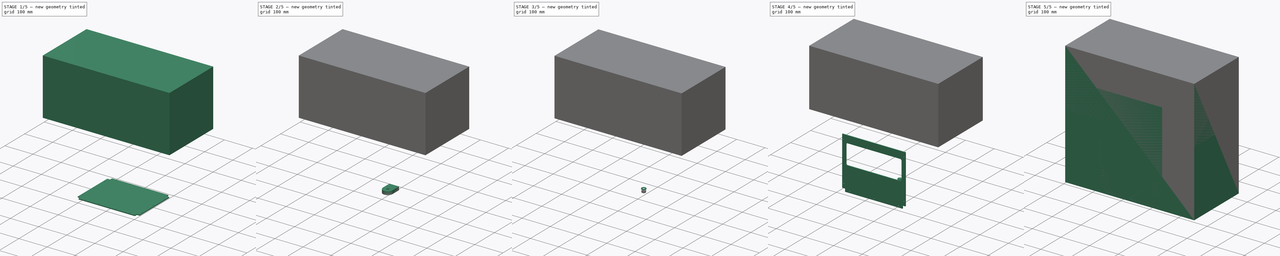
[diagram: build sequence overview — one tinted view per stage of 5, left to right]
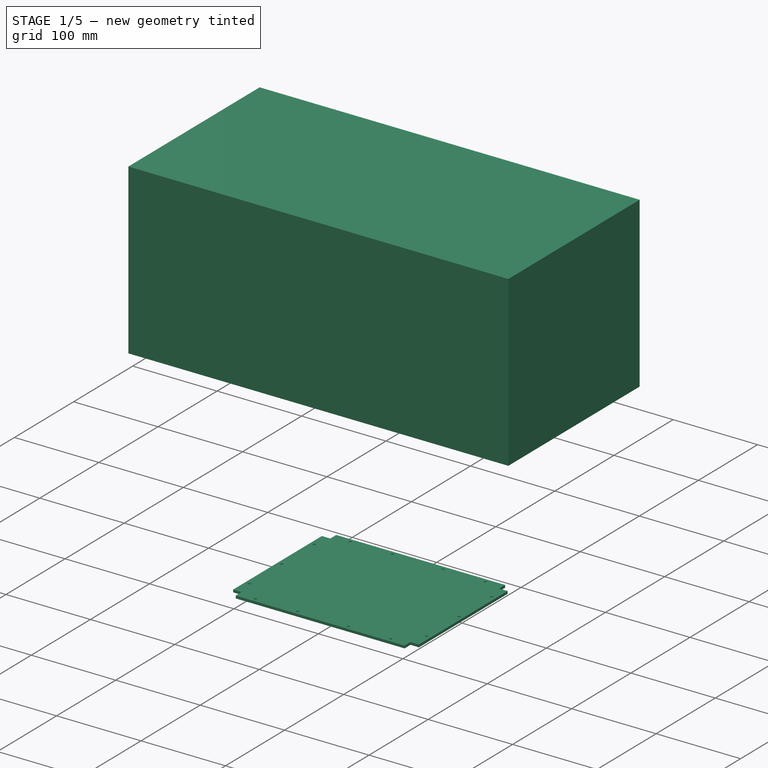
[diagram: stage 1 of 5 — iso view after this stage's code; geometry added in this stage tinted green]
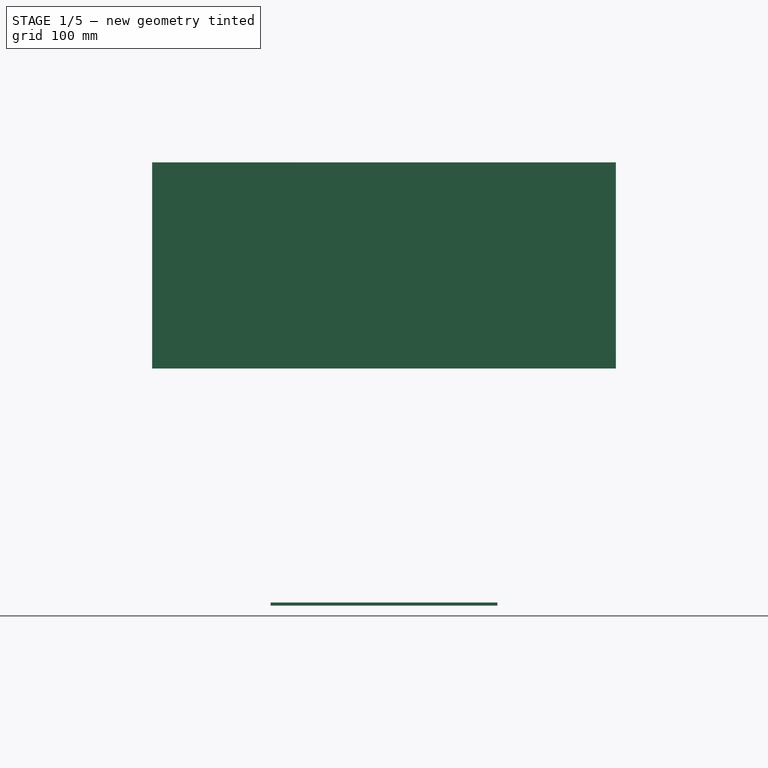
[diagram: stage 1 of 5 — front view after this stage's code; geometry added in this stage tinted green]
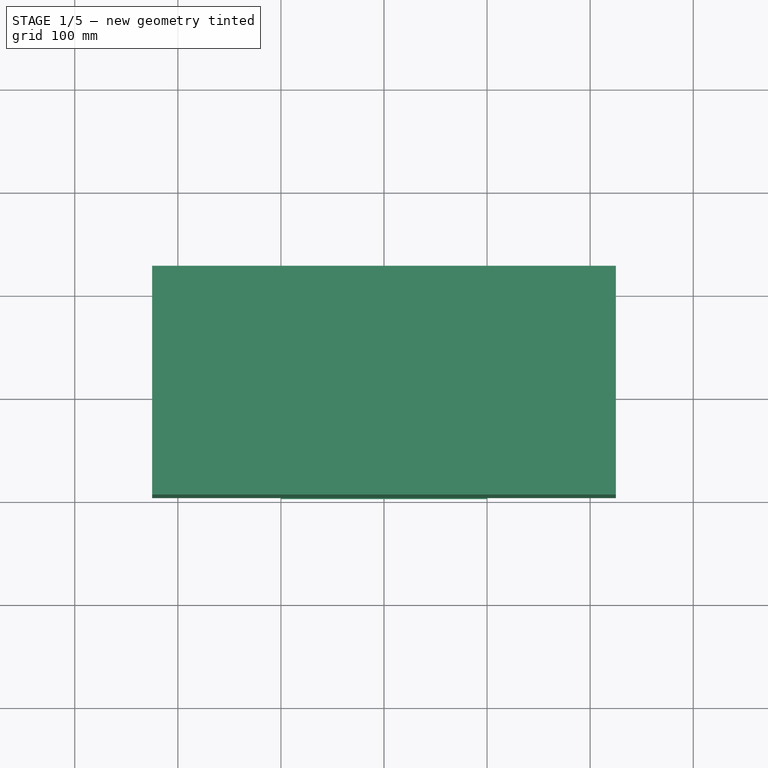
[diagram: stage 1 of 5 — top view after this stage's code; geometry added in this stage tinted green]
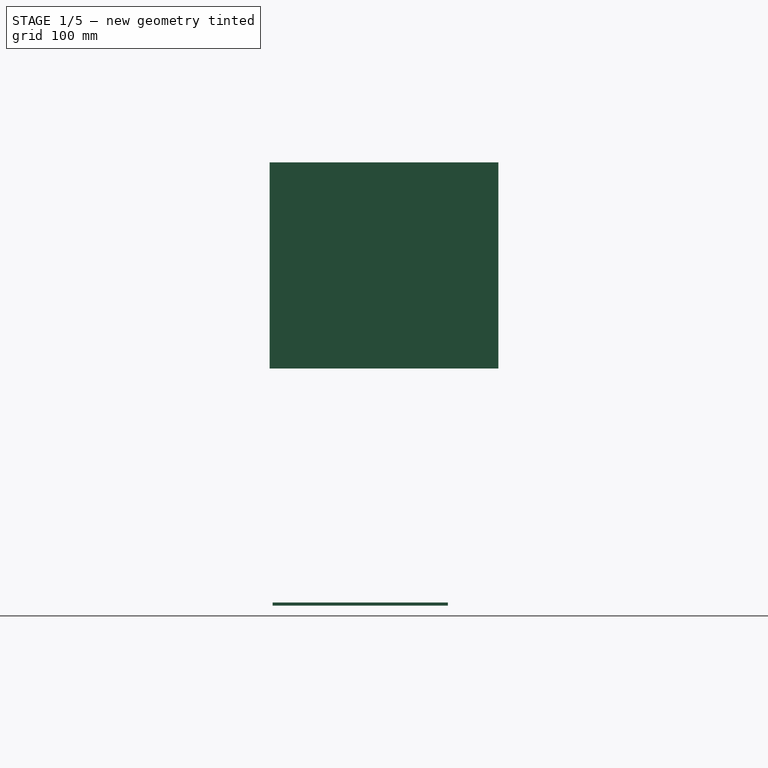
[diagram: stage 1 of 5 — right view after this stage's code; geometry added in this stage tinted green]
FCSTD DOCUMENT  (FreeCAD 2023.131R26244 +5365 (Git))
Label: basket_2023
License: Creative Commons Attribution-NoDerivatives
LicenseURL: http://creativecommons.org/licenses/by-nd/4.0/
objects: App::Link×24, Sketcher::SketchObject×12, PartDesign::Pad×8, App::DocumentObjectGroup×8, PartDesign::Body×7, Part::FeaturePython×5, PartDesign::Pocket×4, PartDesign::Chamfer×4, App::Part×3, PartDesign::Mirrored×1, Part::SubShapeBinder×1
note: 88 computed .brp shape members not serialized (recipe doc carries the construction recipe); baked Part::Feature solids carry a one-line shape summary decoded from their .brp
EXTERNAL_REF file=mechanical-parts/generic-hardware.FCStd obj=Body004
EXTERNAL_REF file=mechanical-parts/generic-hardware.FCStd obj=Body096
EXTERNAL_REF file=mechanical-parts/generic-hardware.FCStd obj=Body095
EXTERNAL_REF file=mechanical-parts/generic-hardware.FCStd obj=Body001

FEATURE [PartDesign::Body] Body002  label="VolumeMakerBeam"
  AutoGroupSolids = false
  ClaimAllChildren = false
  ExportMode = 0
  Group = -> [Sketch002,Pad002]
  InvalidShape = false
  Origin = -> Origin002
  SingleSolid = true
  Tip = -> Pad002
  TreeRank = 41
  ValidateShape = true
  _ExportChildren = -> [Pad002]
  _GroupVersion = 1
FEATURE [App::Link] Link005  label="Link005(*MB_300)"
  AutoLinkLabel = true
  AutoPlacement = true
  LinkPlacement = pos=(-105,8,13) rot=(1,0,0;1.5708rad)
  LinkedObject = -> Link
  Placement = pos=(-105,8,13) rot=(1,0,0;1.5708rad)
  SyncGroupVisibility = false
  TreeRank = 44
  _LinkVersion = 1
FEATURE [App::Link] Link006  label="Link006(*MB_300)"
  AutoLinkLabel = true
  AutoPlacement = true
  LinkPlacement = pos=(105,8,13) rot=(1,0,0;1.5708rad)
  LinkedObject = -> Link
  Placement = pos=(105,8,13) rot=(1,0,0;1.5708rad)
  SyncGroupVisibility = false
  TreeRank = 45
  _LinkVersion = 1
FEATURE [App::Link] Link007  label="Link007(*MB_300)"
  AutoLinkLabel = true
  AutoPlacement = true
  LinkPlacement = pos=(105,168,13) rot=(1,0,0;1.5708rad)
  LinkedObject = -> Link
  Placement = pos=(105,168,13) rot=(1,0,0;1.5708rad)
  SyncGroupVisibility = false
  TreeRank = 46
  _LinkVersion = 1
FEATURE [App::Link] Link008  label="Link008(*MB_200)"
  AutoLinkLabel = true
  AutoPlacement = true
  LinkPlacement = pos=(-100,8,8) rot=(0,0,-1;1.5708rad)
  LinkedObject = -> Link001
  Placement = pos=(-100,8,8) rot=(0,0,-1;1.5708rad)
  SyncGroupVisibility = false
  TreeRank = 47
  _LinkVersion = 1
FEATURE [App::Link] Link009  label="Link009(*MB_200)"
  AutoLinkLabel = true
  AutoPlacement = true
  LinkPlacement = pos=(-100,8,318) rot=(0,0,-1;1.5708rad)
  LinkedObject = -> Link001
  Placement = pos=(-100,8,318) rot=(0,0,-1;1.5708rad)
  SyncGroupVisibility = false
  TreeRank = 48
  _LinkVersion = 1
FEATURE [App::Link] Link010  label="Link010(*MB_200)"
  AutoLinkLabel = true
  AutoPlacement = true
  LinkPlacement = pos=(-100,168,8) rot=(0,0,-1;1.5708rad)
  LinkedObject = -> Link001
  Placement = pos=(-100,168,8) rot=(0,0,-1;1.5708rad)
  SyncGroupVisibility = false
  TreeRank = 49
  _LinkVersion = 1
FEATURE [App::Link] Link011  label="Link011(*MB_200)"
  AutoLinkLabel = true
  AutoPlacement = true
  LinkPlacement = pos=(-100,168,318) rot=(0,0,-1;1.5708rad)
  LinkedObject = -> Link001
  Placement = pos=(-100,168,318) rot=(0,0,-1;1.5708rad)
  SyncGroupVisibility = false
  TreeRank = 50
  _LinkVersion = 1
FEATURE [App::Link] Link012  label="Link012(*MB_150)"
  AutoLinkLabel = true
  AutoPlacement = true
  LinkPlacement = pos=(-105,13,8) rot=(0,0,1;0rad)
  LinkedObject = -> Link002
  Placement = pos=(-105,13,8) rot=(0,0,1;0rad)
  SyncGroupVisibility = false
  TreeRank = 51
  _LinkVersion = 1
FEATURE [App::Link] Link013  label="Link013(*MB_150)"
  AutoLinkLabel = true
  AutoPlacement = true
  LinkPlacement = pos=(105,13,8) rot=(0,0,1;0rad)
  LinkedObject = -> Link002
  Placement = pos=(105,13,8) rot=(0,0,1;0rad)
  SyncGroupVisibility = false
  TreeRank = 52
  _LinkVersion = 1
FEATURE [App::Link] Link014  label="Link014(*MB_150)"
  AutoLinkLabel = true
  AutoPlacement = true
  LinkPlacement = pos=(-105,13,318) rot=(0,0,1;0rad)
  LinkedObject = -> Link002
  Placement = pos=(-105,13,318) rot=(0,0,1;0rad)
  SyncGroupVisibility = false
  TreeRank = 53
  _LinkVersion = 1
FEATURE [App::Link] Link015  label="Link015(*MB_150)"
  AutoLinkLabel = true
  AutoPlacement = true
  LinkPlacement = pos=(105,13,318) rot=(0,0,1;0rad)
  LinkedObject = -> Link002
  Placement = pos=(105,13,318) rot=(0,0,1;0rad)
  SyncGroupVisibility = false
  TreeRank = 54
  _LinkVersion = 1
FEATURE [App::Link] Link016  label="Link016(*Corner)"
  AutoLinkLabel = true
  AutoPlacement = true
  LinkPlacement = pos=(-105,8,8) rot=(0,0,1;3.14159rad)
  LinkedObject = -> Link003
  Placement = pos=(-105,8,8) rot=(0,0,1;3.14159rad)
  SyncGroupVisibility = false
  TreeRank = 55
  _LinkVersion = 1
FEATURE [App::Link] Link017  label="Link017(*Corner)"
  AutoLinkLabel = true
  AutoPlacement = true
  LinkPlacement = pos=(105,8,8) rot=(0,0,-1;1.5708rad)
  LinkedObject = -> Link003
  Placement = pos=(105,8,8) rot=(0,0,-1;1.5708rad)
  SyncGroupVisibility = false
  TreeRank = 56
  _LinkVersion = 1
FEATURE [App::Link] Link018  label="Link018(*Corner)"
  AutoLinkLabel = true
  AutoPlacement = true
  LinkPlacement = pos=(105,168,8) rot=(0,0,1;0rad)
  LinkedObject = -> Link003
  Placement = pos=(105,168,8) rot=(0,0,1;0rad)
  SyncGroupVisibility = false
  TreeRank = 57
  _LinkVersion = 1
FEATURE [App::Link] Link019  label="Link019(*Corner)"
  AutoLinkLabel = true
  AutoPlacement = true
  LinkPlacement = pos=(-105,168,8) rot=(0,0,1;1.5708rad)
  LinkedObject = -> Link003
  Placement = pos=(-105,168,8) rot=(0,0,1;1.5708rad)
  SyncGroupVisibility = false
  TreeRank = 58
  _LinkVersion = 1
FEATURE [App::Link] Link020  label="Link020(*Corner)"
  AutoLinkLabel = true
  AutoPlacement = true
  LinkPlacement = pos=(-105,8,318) rot=(-0.57735,0.57735,0.57735;2.0944rad)
  LinkedObject = -> Link003
  Placement = pos=(-105,8,318) rot=(-0.57735,0.57735,0.57735;2.0944rad)
  SyncGroupVisibility = false
  TreeRank = 59
  _LinkVersion = 1
FEATURE [App::Link] Link021  label="Link021(*Corner)"
  AutoLinkLabel = true
  AutoPlacement = true
  LinkPlacement = pos=(105,8,318) rot=(-0.57735,-0.57735,-0.57735;2.0944rad)
  LinkedObject = -> Link003
  Placement = pos=(105,8,318) rot=(-0.57735,-0.57735,-0.57735;2.0944rad)
  SyncGroupVisibility = false
  TreeRank = 60
  _LinkVersion = 1
FEATURE [App::Link] Link022  label="Link022(*Corner)"
  AutoLinkLabel = true
  AutoPlacement = true
  LinkPlacement = pos=(-105,168,318) rot=(0.57735,-0.57735,0.57735;2.0944rad)
  LinkedObject = -> Link003
  Placement = pos=(-105,168,318) rot=(0.57735,-0.57735,0.57735;2.0944rad)
  SyncGroupVisibility = false
  TreeRank = 61
  _LinkVersion = 1
FEATURE [App::Link] Link023  label="Link023(*Corner)"
  AutoLinkLabel = true
  AutoPlacement = true
  LinkPlacement = pos=(105,168,318) rot=(0,-1,0;1.5708rad)
  LinkedObject = -> Link003
  Placement = pos=(105,168,318) rot=(0,-1,0;1.5708rad)
  SyncGroupVisibility = false
  TreeRank = 62
  _LinkVersion = 1
FEATURE [App::DocumentObjectGroup] Group002  label="Corner"
  ClaimAllChildren = true
  ExportMode = 1
  Group = -> [Link016,Link017,Link018,Link019,Link020,Link021,Link022,Link023]
  TreeRank = 63
  _GroupVersion = 1
FEATURE [App::DocumentObjectGroup] Group003  label="MB_200"
  ClaimAllChildren = true
  ExportMode = 1
  Group = -> [Link011,Link008,Link009,Link010]
  TreeRank = 64
  _GroupVersion = 1
FEATURE [App::DocumentObjectGroup] Group004  label="MB_300"
  ClaimAllChildren = true
  ExportMode = 1
  Group = -> [Link007,Link004,Link005,Link006]
  TreeRank = 65
  _GroupVersion = 1
FEATURE [App::DocumentObjectGroup] Group005  label="MB_150"
  ClaimAllChildren = true
  ExportMode = 1
  Group = -> [Link012,Link013,Link014,Link015]
  TreeRank = 66
  _GroupVersion = 1
FEATURE [App::Part] Part  label="StructureMakerBeam"
  ClaimAllChildren = false
  ExportMode = 1
  Group = -> [Group002,Group003,Group004,Group005,Link023,Link019,Link020,Link018,Link021,Link022,Link017,Link016,Link011,Link008,Link009,Link010,Link004,Link005,Link006,Link007,Link013,Link012,Link014,Link015]
  Origin = -> Origin003
  TreeRank = 69
  _ExportChildren = -> [Group002,Group003,Group004,Group005]
  _GroupVersion = 1
FEATURE [Sketcher::SketchObject] Sketch003
  ArcFitTolerance = 1e-06
  AttachmentSupport = -> [XY_Plane003]
  ExternalBSplineMaxDegree = 5
  ExternalBSplineTolerance = 0.0001
  FullyConstrained = true
  InternalTolerance = 1e-06
  InvalidShape = false
  MakeInternals = true
  MapMode = 5
  Support = -> [XY_Plane003]
  TreeRank = 80
  ValidateShape = true
  sketch-geometry (12):
    g0: LineSegment StartX=-110 StartY=163 StartZ=0 EndX=-100 EndY=163 EndZ=0
    g1: LineSegment StartX=-100 StartY=163 StartZ=0 EndX=-100 EndY=173 EndZ=0
    g2: LineSegment StartX=-100 StartY=173 StartZ=0 EndX=100 EndY=173 EndZ=0
    g3: LineSegment StartX=100 StartY=173 StartZ=0 EndX=100 EndY=163 EndZ=0
    g4: LineSegment StartX=100 StartY=163 StartZ=0 EndX=110 EndY=163 EndZ=0
    g5: LineSegment StartX=110 StartY=163 StartZ=0 EndX=110 EndY=13 EndZ=0
    g6: LineSegment StartX=110 StartY=13 StartZ=0 EndX=100 EndY=13 EndZ=0
    g7: LineSegment StartX=100 StartY=13 StartZ=0 EndX=100 EndY=3 EndZ=0
    g8: LineSegment StartX=100 StartY=3 StartZ=0 EndX=-100 EndY=3 EndZ=0
    g9: LineSegment StartX=-100 StartY=3 StartZ=0 EndX=-100 EndY=13 EndZ=0
    g10: LineSegment StartX=-100 StartY=13 StartZ=0 EndX=-110 EndY=13 EndZ=0
    g11: LineSegment StartX=-110 StartY=13 StartZ=0 EndX=-110 EndY=163 EndZ=0
  constraints (35):
    c: Horizontal(g0)
    c: Coincident(g0,g1)
    c: Vertical(g1)
    c: Coincident(g1,g2)
    c: Horizontal(g2)
    c: Coincident(g2,g3)
    c: Vertical(g3)
    c: Coincident(g3,g4)
    c: Horizontal(g4)
    c: Coincident(g4,g5)
    c: Vertical(g5)
    c: Coincident(g5,g6)
    c: Horizontal(g6)
    c: Coincident(g6,g7)
    c: Vertical(g7)
    c: Coincident(g7,g8)
    c: Coincident(g8,g9)
    c: Vertical(g9)
    c: Coincident(g9,g10)
    c: Horizontal(g10)
    c: Coincident(g10,g11)
    c: Coincident(g11,g0)
    c: Vertical(g11)
    c: Equal(g0,g1)
    c: Equal(g1,g3)
    c: Equal(g3,g4)
    c: Equal(g4,g6)
    c: Equal(g6,g7)
    c: Equal(g9,g10)
    c: DistanceX(g4,g4) = 10
    c: Symmetric(g5,g10,g-2)
    c: DistanceX(g10,g5) = 220
    c: Horizontal(g8)
    c: DistanceY(g-1,g7) = 3
    c: DistanceY(g7,g2) = 170
FEATURE [PartDesign::Pad] Pad003
  AddSubType = 0
  AlongSketchNormal = false
  AutoTaperInnerAngle = true
  CheckUpToFaceLimits = true
  ClaimChildren = false
  Direction = (0,0,1)
  Fit = 0
  FitJoin = 0
  InnerFit = 0
  InnerFitJoin = 0
  InvalidShape = false
  Length = 3
  Length2 = 100
  Linearize = true
  NewSolid = false
  Profile = -> Sketch003
  Refine = true
  Suppress = false
  TaperInnerAngle = 0
  TaperInnerAngleRev = 0
  TreeRank = 81
  Type = 0
  ValidateShape = true
  _ProfileBasedVersion = 1
FEATURE [Sketcher::SketchObject] Sketch004
  ArcFitTolerance = 1e-06
  AttachmentSupport = -> [XY_Plane003]
  ExternalBSplineMaxDegree = 5
  ExternalBSplineTolerance = 0.0001
  ExternalGeometry = -> [Pad003]
  FullyConstrained = true
  InternalTolerance = 1e-06
  InvalidShape = false
  MakeInternals = true
  MapMode = 5
  Support = -> [XY_Plane003]
  TreeRank = 82
  ValidateShape = true
  sketch-geometry (11):
    g0: LineSegment [constr] StartX=-105 StartY=163 StartZ=0 EndX=-105 EndY=13 EndZ=0
    g1: LineSegment [constr] StartX=-105 StartY=88 StartZ=0 EndX=0 EndY=88 EndZ=0
    g2: LineSegment [constr] StartX=-100 StartY=168 StartZ=0 EndX=0 EndY=168 EndZ=0
    g3: LineSegment [constr] StartX=-100 StartY=8 StartZ=0 EndX=1.42e-14 EndY=8 EndZ=0
    g4: Circle CenterX=-105 CenterY=143 CenterZ=0 NormalX=0 NormalY=0 NormalZ=1 AngleXU=0 Radius=1.6
    g5: Circle CenterX=-105 CenterY=33 CenterZ=0 NormalX=0 NormalY=0 NormalZ=1 AngleXU=0 Radius=1.6
    g6: Circle CenterX=-80 CenterY=8 CenterZ=0 NormalX=0 NormalY=0 NormalZ=1 AngleXU=0 Radius=1.6
    g7: Circle CenterX=-80 CenterY=168 CenterZ=0 NormalX=0 NormalY=0 NormalZ=1 AngleXU=0 Radius=1.6
    g8: Circle CenterX=-105 CenterY=88 CenterZ=0 NormalX=0 NormalY=0 NormalZ=1 AngleXU=0 Radius=1.6
    g9: Circle CenterX=-30 CenterY=168 CenterZ=0 NormalX=0 NormalY=0 NormalZ=1 AngleXU=0 Radius=1.6
    g10: Circle CenterX=-30 CenterY=8 CenterZ=0 NormalX=0 NormalY=0 NormalZ=1 AngleXU=0 Radius=1.6
  constraints (29):
    c: PointOnObject(g0,g-4)
    c: Vertical(g0)
    c: PointOnObject(g1,g-2)
    c: Horizontal(g1)
    c: Symmetric(g0,g0,g1)
    c: Symmetric(g-3,g-6,g0)
    c: PointOnObject(g2,g-2)
    c: Horizontal(g2)
    c: Symmetric(g-6,g-6,g2)
    c: PointOnObject(g3,g-2)
    c: Horizontal(g3)
    c: Symmetric(g-5,g-5,g3)
    c: PointOnObject(g4,g0)
    c: PointOnObject(g6,g3)
    c: Equal(g7,g4)
    c: Equal(g7,g5)
    c: Equal(g7,g6)
    c: Diameter(g7) = 3.2
    c: Symmetric(g4,g5,g1)
    c: Symmetric(g7,g6,g1)
    c: Coincident(g8,g1)
    c: Equal(g8,g4)
    c: DistanceY(g4,g0) = 20
    c: DistanceX(g2,g7) = 20
    c: PointOnObject(g9,g2)
    c: Equal(g9,g10)
    c: Equal(g10,g6)
    c: Symmetric(g10,g9,g1)
    c: DistanceX(g10,g3) = 30
FEATURE [PartDesign::Pocket] Pocket
  AddSubType = 1
  AutoTaperInnerAngle = true
  BaseFeature = -> Pad003
  CheckUpToFaceLimits = true
  ClaimChildren = false
  Fit = 0
  FitJoin = 0
  InnerFit = 0
  InnerFitJoin = 0
  InvalidShape = false
  Length = 5
  Length2 = 100
  Linearize = true
  NewSolid = false
  Profile = -> Sketch004
  Refine = true
  Reversed = true
  Suppress = false
  TaperInnerAngle = 0
  TaperInnerAngleRev = 0
  TreeRank = 83
  Type = 1
  ValidateShape = true
  _ProfileBasedVersion = 1
  _Version = 1
FEATURE [PartDesign::Mirrored] Mirrored
  AddSubType = 0
  BaseFeature = -> Pocket
  CopyShape = false
  InvalidShape = false
  MirrorPlane = -> Sketch004 [V_Axis]
  NewSolid = false
  OriginalSubs = -> [Pocket]
  Originals = -> [Pocket]
  ParallelTransform = true
  Refine = true
  SubTransform = true
  Suppress = false
  TreeRank = 84
  ValidateShape = true
  _Version = 3
FEATURE [PartDesign::Body] Body005  label="CarterAvantOuverture"
  AutoGroupSolids = false
  ClaimAllChildren = false
  ExportMode = 0
  Group = -> [Sketch010,Pad006,Chamfer003]
  InvalidShape = false
  Origin = -> Origin006
  SingleSolid = true
  Tip = -> Chamfer003
  TreeRank = 130
  ValidateShape = true
  _ExportChildren = -> [Pad006,Chamfer003]
  _GroupVersion = 1
FEATURE [App::Part] Part001  label="EnsembleInferieur"
  ClaimAllChildren = false
  ExportMode = 1
  Group = -> [Body004,Group006,Nut,Washer001,Nut001,Washer,Screw,Body003]
  Origin = -> Origin007
  TreeRank = 139
  _ExportChildren = -> [Body004,Group006,Body003]
  _GroupVersion = 1
FEATURE [App::DocumentObjectGroup] Group007  label="Carter"
  ClaimAllChildren = true
  ExportMode = 1
  Group = -> [Body005,Part001]
  TreeRank = 134
  _GroupVersion = 1
FEATURE [App::Part] Part002  label="Basket_2023"
  ClaimAllChildren = false
  ExportMode = 1
  Group = -> [Part,Group007,Body005,Part001]
  Origin = -> Origin008
  TreeRank = 142
  _ExportChildren = -> [Part,Group007]
  _GroupVersion = 1
FEATURE [Sketcher::SketchObject] Sketch011
  ArcFitTolerance = 1e-06
  AttachmentSupport = -> [XZ_Plane006]
  ExternalBSplineMaxDegree = 5
  ExternalBSplineTolerance = 0.0001
  FullyConstrained = true
  InternalTolerance = 1e-06
  InvalidShape = false
  MakeInternals = true
  MapMode = 5
  Placement = pos=(0,0,0) rot=(1,0,0;1.5708rad)
  Support = -> [XZ_Plane006]
  TreeRank = 153
  ValidateShape = true
  sketch-geometry (4):
    g0: LineSegment StartX=-225 StartY=430 StartZ=0 EndX=225 EndY=430 EndZ=0
    g1: LineSegment StartX=225 StartY=430 StartZ=0 EndX=225 EndY=230 EndZ=0
    g2: LineSegment StartX=225 StartY=230 StartZ=0 EndX=-225 EndY=230 EndZ=0
    g3: LineSegment StartX=-225 StartY=230 StartZ=0 EndX=-225 EndY=430 EndZ=0
  constraints (11):
    c: Coincident(g0,g1)
    c: Coincident(g1,g2)
    c: Coincident(g2,g3)
    c: Coincident(g3,g0)
    c: Horizontal(g0)
    c: Vertical(g1)
    c: Vertical(g3)
    c: DistanceY(g0) = 430
    c: DistanceX(g0,g0) = 450
    c: Symmetric(g1,g2,g-2)
    c: DistanceY(g1) = 230
FEATURE [PartDesign::Pad] Pad007
  AddSubType = 0
  AlongSketchNormal = false
  AutoTaperInnerAngle = true
  CheckUpToFaceLimits = true
  ClaimChildren = false
  Direction = (0,-1,2e-16)
  Fit = 0
  FitJoin = 0
  InnerFit = 0
  InnerFitJoin = 0
  InvalidShape = false
  Length = 222
  Length2 = 100
  Linearize = true
  NewSolid = false
  Profile = -> Sketch011
  Refine = true
  Reversed = true
  Suppress = false
  TaperInnerAngle = 0
  TaperInnerAngleRev = 0
  TreeRank = 154
  Type = 0
  ValidateShape = true
  _ProfileBasedVersion = 1
FEATURE [PartDesign::Body] Body006  label="Volume300mm"
  AutoGroupSolids = false
  ClaimAllChildren = false
  ExportMode = 0
  Group = -> [Sketch011,Pad007]
  InvalidShape = false
  Origin = -> Origin009
  SingleSolid = true
  Tip = -> Pad007
  TreeRank = 152
  ValidateShape = true
  _ExportChildren = -> [Pad007]
  _GroupVersion = 1
FEATURE [App::DocumentObjectGroup] Group001  label="Volume"
  ClaimAllChildren = true
  ExportMode = 1
  Group = -> [Body,Body001,Body002,Body006]
  TreeRank = 18
  _GroupVersion = 1

RESOLVED EXTERNAL PARTS (link-assembly join: the EXTERNAL_REF files above that resolve inside this repo's crawl, each included once):
---- part mechanical-parts/generic-hardware.FCStd = doc fcstd_4d7483fc6a56 (179892 chars; too large to inline — full recipe in that document) ----
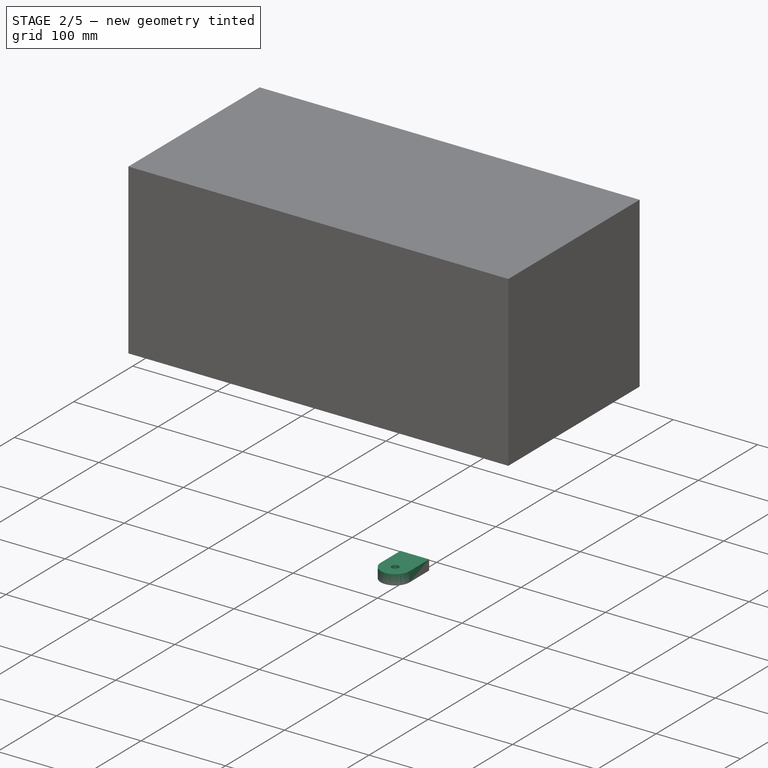
[diagram: stage 2 of 5 — iso view after this stage's code; geometry added in this stage tinted green]
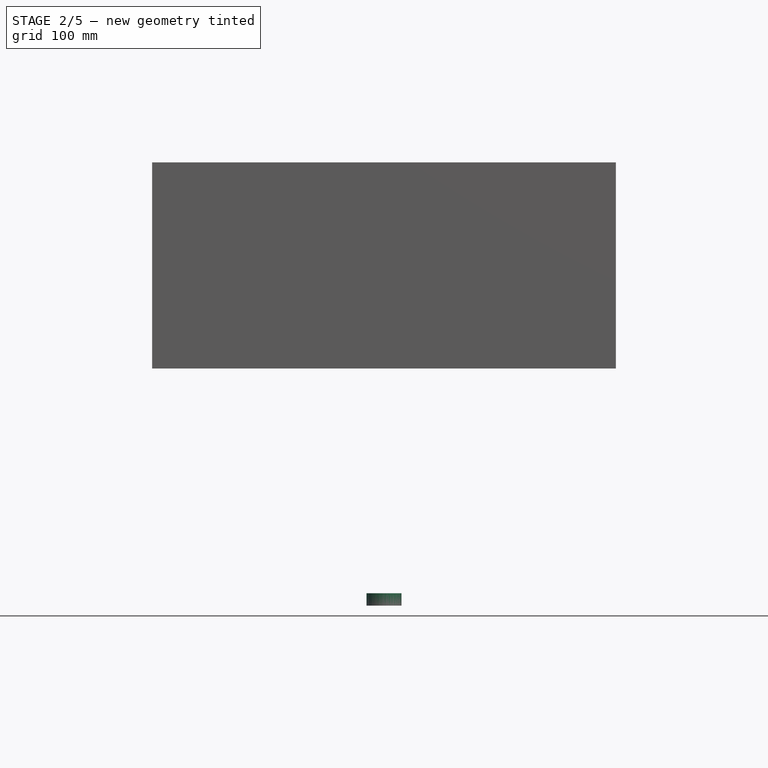
[diagram: stage 2 of 5 — front view after this stage's code; geometry added in this stage tinted green]
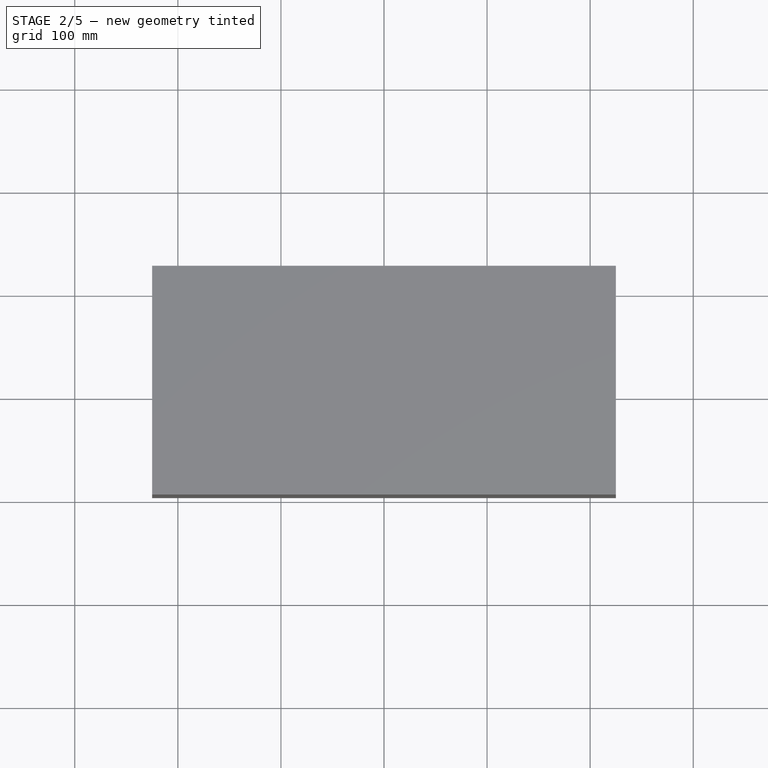
[diagram: stage 2 of 5 — top view after this stage's code; geometry added in this stage tinted green]
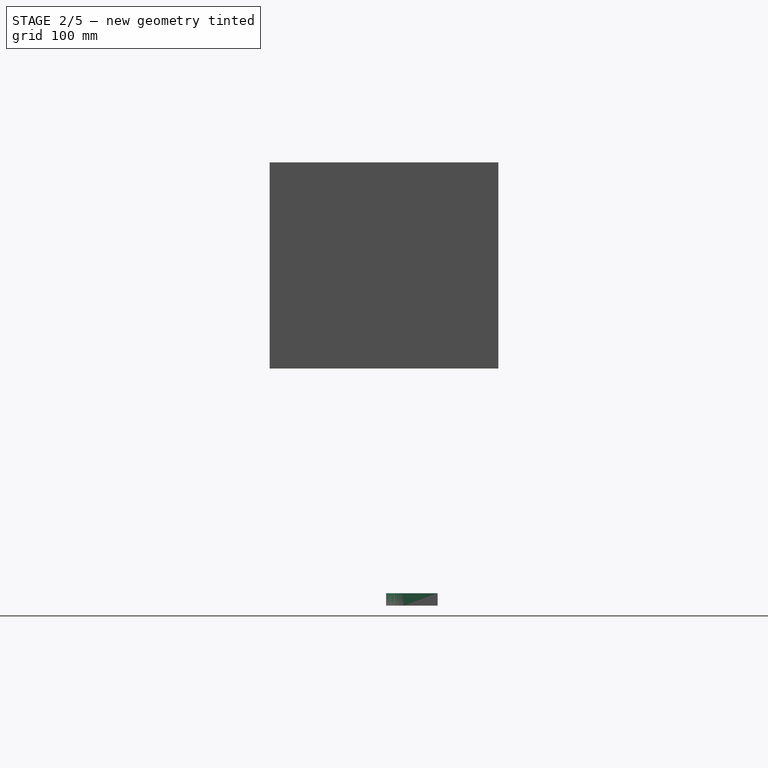
[diagram: stage 2 of 5 — right view after this stage's code; geometry added in this stage tinted green]
FEATURE [PartDesign::Chamfer] Chamfer
  AddSubType = 0
  Angle = 45
  Base = -> Mirrored [Edge59,Edge5,Edge1,Edge8,Edge62,Edge58,Edge64,Edge61]
  BaseFeature = -> Mirrored
  ChamferType = 0
  FlipDirection = false
  InvalidShape = false
  NewSolid = false
  Refine = true
  Size = 1.5
  Size2 = 1
  SupportTransform = false
  Suppress = false
  TreeRank = 85
  ValidateShape = true
FEATURE [Sketcher::SketchObject] Sketch005
  ArcFitTolerance = 1e-06
  AttachmentSupport = -> [XY_Plane003]
  ExternalBSplineMaxDegree = 5
  ExternalBSplineTolerance = 0.0001
  FullyConstrained = true
  InternalTolerance = 1e-06
  InvalidShape = false
  MakeInternals = true
  MapMode = 5
  Support = -> [XY_Plane003]
  TreeRank = 86
  ValidateShape = true
  sketch-geometry (1):
    g0: Circle CenterX=0 CenterY=130 CenterZ=0 NormalX=0 NormalY=0 NormalZ=1 AngleXU=0 Radius=4.2
  constraints (3):
    c: PointOnObject(g0,g-2)
    c: Diameter(g0) = 8.4
    c: DistanceY(g-1,g0) = 130
FEATURE [PartDesign::Pocket] Pocket001
  AddSubType = 1
  AutoTaperInnerAngle = true
  BaseFeature = -> Chamfer
  CheckUpToFaceLimits = true
  ClaimChildren = false
  Fit = 0
  FitJoin = 0
  InnerFit = 0
  InnerFitJoin = 0
  InvalidShape = false
  Length = 5
  Length2 = 100
  Linearize = true
  NewSolid = false
  Profile = -> Sketch005
  Refine = true
  Reversed = true
  Suppress = false
  TaperInnerAngle = 0
  TaperInnerAngleRev = 0
  TreeRank = 87
  Type = 1
  ValidateShape = true
  _ProfileBasedVersion = 1
  _Version = 1
FEATURE [Sketcher::SketchObject] Sketch006
  ArcFitTolerance = 1e-06
  AttachmentSupport = -> [XY_Plane004]
  ExternalBSplineMaxDegree = 5
  ExternalBSplineTolerance = 0.0001
  ExternalGeometry = -> [Pocket001]
  FullyConstrained = true
  InternalTolerance = 1e-06
  InvalidShape = false
  MakeInternals = true
  MapMode = 5
  Support = -> [XY_Plane004]
  TreeRank = 93
  ValidateShape = true
  sketch-geometry (5):
    g0: ArcOfCircle CenterX=-1.78743e-11 CenterY=130 CenterZ=0 NormalX=0 NormalY=0 NormalZ=1 AngleXU=0 Radius=17 StartAngle=3.14159 EndAngle=6.28319
    g1: LineSegment StartX=-17 StartY=130 StartZ=0 EndX=-17 EndY=163 EndZ=0
    g2: LineSegment StartX=-17 StartY=163 StartZ=0 EndX=17 EndY=163 EndZ=0
    g3: LineSegment StartX=17 StartY=163 StartZ=0 EndX=17 EndY=130 EndZ=0
    g4: Circle CenterX=-1.78743e-11 CenterY=130 CenterZ=0 NormalX=0 NormalY=0 NormalZ=1 AngleXU=0 Radius=4.2
  constraints (12):
    c: Coincident(g0,g-3)
    c: Vertical(g1)
    c: Coincident(g2,g1)
    c: Horizontal(g2)
    c: Coincident(g3,g2)
    c: Vertical(g3)
    c: DistanceY(g2,g-4) = 10
    c: Tangent(g3,g0) = 1.5708
    c: Tangent(g1,g0) = 1.5708
    c: Diameter(g0) = 34
    c: Coincident(g4,g0)
    c: Diameter(g4) = 8.4
FEATURE [PartDesign::Pad] Pad004
  AddSubType = 0
  AlongSketchNormal = false
  AutoTaperInnerAngle = true
  CheckUpToFaceLimits = true
  ClaimChildren = false
  Direction = (0,0,1)
  Fit = 0
  FitJoin = 0
  InnerFit = 0
  InnerFitJoin = 0
  InvalidShape = false
  Length = 12
  Length2 = 100
  Linearize = true
  NewSolid = false
  Profile = -> Sketch006
  Refine = true
  Suppress = false
  TaperInnerAngle = 0
  TaperInnerAngleRev = 0
  TreeRank = 104
  Type = 0
  ValidateShape = true
  _ProfileBasedVersion = 1
FEATURE [Sketcher::SketchObject] Sketch007
  ArcFitTolerance = 1e-06
  AttachmentSupport = -> [XY_Plane004]
  ExternalBSplineMaxDegree = 5
  ExternalBSplineTolerance = 0.0001
  ExternalGeometry = -> [Pad004]
  FullyConstrained = true
  InternalTolerance = 1e-06
  InvalidShape = false
  MakeInternals = true
  MapMode = 5
  Support = -> [XY_Plane004]
  TreeRank = 105
  ValidateShape = true
  sketch-geometry (7):
    g0: LineSegment StartX=7.79423 StartY=130 StartZ=0 EndX=3.89711 EndY=136.75 EndZ=0
    g1: LineSegment StartX=3.89711 StartY=136.75 StartZ=0 EndX=-3.89711 EndY=136.75 EndZ=0
    g2: LineSegment StartX=-3.89711 StartY=136.75 StartZ=0 EndX=-7.79423 EndY=130 EndZ=0
    g3: LineSegment StartX=-7.79423 StartY=130 StartZ=0 EndX=-3.89711 EndY=123.25 EndZ=0
    g4: LineSegment StartX=-3.89711 StartY=123.25 StartZ=0 EndX=3.89711 EndY=123.25 EndZ=0
    g5: LineSegment StartX=3.89711 StartY=123.25 StartZ=0 EndX=7.79423 EndY=130 EndZ=0
    g6: Circle [constr] CenterX=2.73045e-11 CenterY=130 CenterZ=0 NormalX=0 NormalY=0 NormalZ=1 AngleXU=0 Radius=7.79423
  constraints (16):
    c: Coincident(g0,g1)
    c: Coincident(g1,g2)
    c: Coincident(g2,g3)
    c: Coincident(g3,g4)
    c: Coincident(g4,g5)
    c: Coincident(g5,g0)
    c: Equal(g0, g1-g5) x5
    c: PointOnObject(g0,g6)
    c: PointOnObject(g1,g6)
    c: PointOnObject(g2,g6)
    c: PointOnObject(g3,g6)
    c: PointOnObject(g4,g6)
    c: PointOnObject(g5,g6)
    c: Coincident(g6,g-3)
    c: Horizontal(g1)
    c: DistanceY(g4,g0) = 13.5
FEATURE [PartDesign::Pad] Pad005
  AddSubType = 1
  AlongSketchNormal = false
  AutoTaperInnerAngle = true
  BaseFeature = -> Pad004
  CheckUpToFaceLimits = true
  ClaimChildren = false
  Direction = (0,0,1)
  Fit = 0
  FitJoin = 0
  InnerFit = 0
  InnerFitJoin = 0
  InvalidShape = false
  Length = 8.5
  Length2 = 100
  Linearize = true
  NewSolid = false
  Profile = -> Sketch007
  Refine = true
  Suppress = false
  TaperInnerAngle = 0
  TaperInnerAngleRev = 0
  TreeRank = 106
  Type = 0
  ValidateShape = true
  _ProfileBasedVersion = 1
FEATURE [Sketcher::SketchObject] Sketch008
  ArcFitTolerance = 1e-06
  AttachmentSupport = -> [XY_Plane004]
  ExternalBSplineMaxDegree = 5
  ExternalBSplineTolerance = 0.0001
  ExternalGeometry = -> [Pad004]
  FullyConstrained = true
  InternalTolerance = 1e-06
  InvalidShape = false
  MakeInternals = true
  MapMode = 5
  Support = -> [XY_Plane004]
  TreeRank = 107
  ValidateShape = true
  sketch-geometry (7):
    g0: Circle CenterX=1.1e-15 CenterY=118 CenterZ=0 NormalX=0 NormalY=0 NormalZ=1 AngleXU=0 Radius=2.2
    g1: Circle CenterX=-10.3923 CenterY=136 CenterZ=0 NormalX=0 NormalY=0 NormalZ=1 AngleXU=0 Radius=2.2
    g2: Circle CenterX=10.3923 CenterY=136 CenterZ=0 NormalX=0 NormalY=0 NormalZ=1 AngleXU=0 Radius=2.2
    g3: Circle [constr] CenterX=-4.19335e-11 CenterY=130 CenterZ=0 NormalX=0 NormalY=0 NormalZ=1 AngleXU=0 Radius=12
    g4: Circle CenterX=0 CenterY=155 CenterZ=0 NormalX=0 NormalY=0 NormalZ=1 AngleXU=0 Radius=2.2
    g5: LineSegment [constr] StartX=-1.80398e-11 StartY=130 StartZ=0 EndX=-10.3923 EndY=136 EndZ=0
    g6: LineSegment [constr] StartX=-1.79352e-11 StartY=130 StartZ=0 EndX=10.3923 EndY=136 EndZ=0
  constraints (18):
    c: PointOnObject(g0,g-2)
    c: Coincident(g3,g-3)
    c: PointOnObject(g2,g3)
    c: PointOnObject(g0,g3)
    c: PointOnObject(g1,g3)
    c: Equal(g1,g2)
    c: Equal(g1,g0)
    c: Diameter(g1) = 4.4
    c: PointOnObject(g4,g-2)
    c: Equal(g4,g2)
    c: Coincident(g5,g-3)
    c: Coincident(g5,g1)
    c: Coincident(g6,g-3)
    c: Coincident(g6,g2)
    c: Angle(g-2,g6) = 2.0944
    c: Angle(g5,g-2) = 2.0944
    c: DistanceY(g0,g-3) = 12
    c: DistanceY(g-3,g4) = 25
FEATURE [PartDesign::Pocket] Pocket002
  AddSubType = 1
  AutoTaperInnerAngle = true
  BaseFeature = -> Pad005
  CheckUpToFaceLimits = true
  ClaimChildren = false
  Fit = 0
  FitJoin = 0
  InnerFit = 0
  InnerFitJoin = 0
  InvalidShape = false
  Length = 10
  Length2 = 100
  Linearize = true
  NewSolid = false
  Profile = -> Sketch008
  Refine = true
  Reversed = true
  Suppress = false
  TaperInnerAngle = 0
  TaperInnerAngleRev = 0
  TreeRank = 108
  Type = 0
  ValidateShape = true
  _ProfileBasedVersion = 1
  _Version = 1
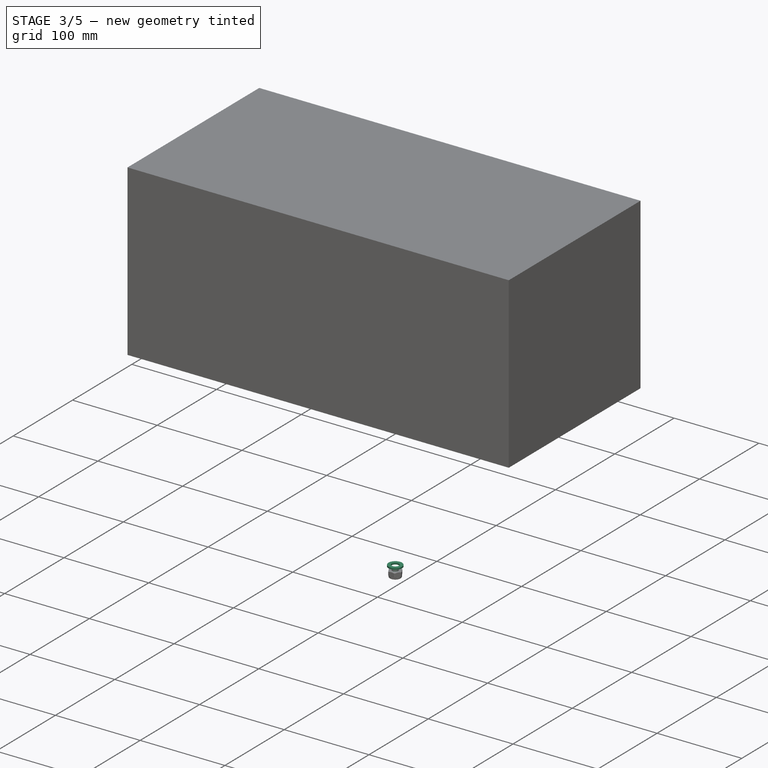
[diagram: stage 3 of 5 — iso view after this stage's code; geometry added in this stage tinted green]
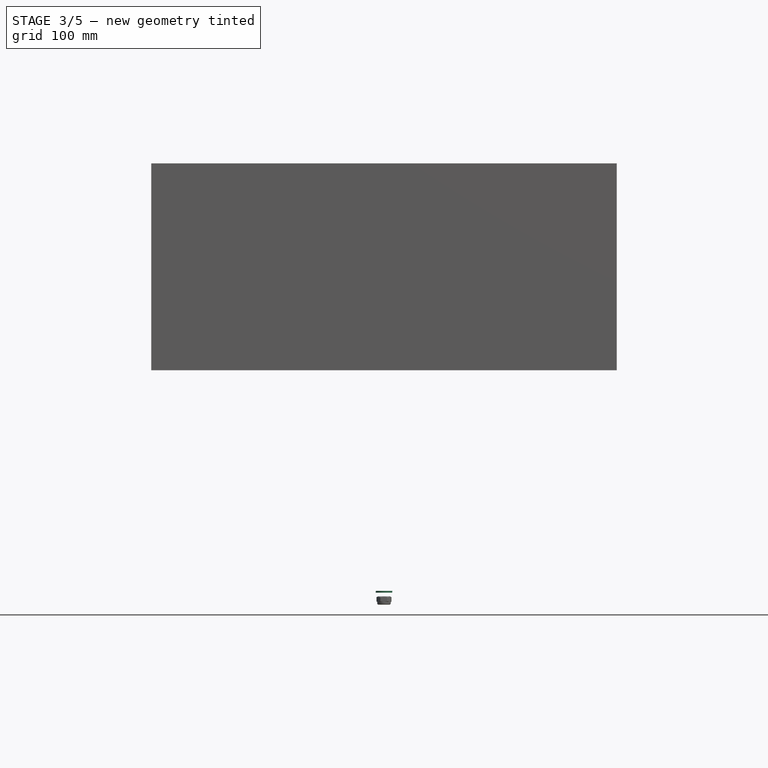
[diagram: stage 3 of 5 — front view after this stage's code; geometry added in this stage tinted green]
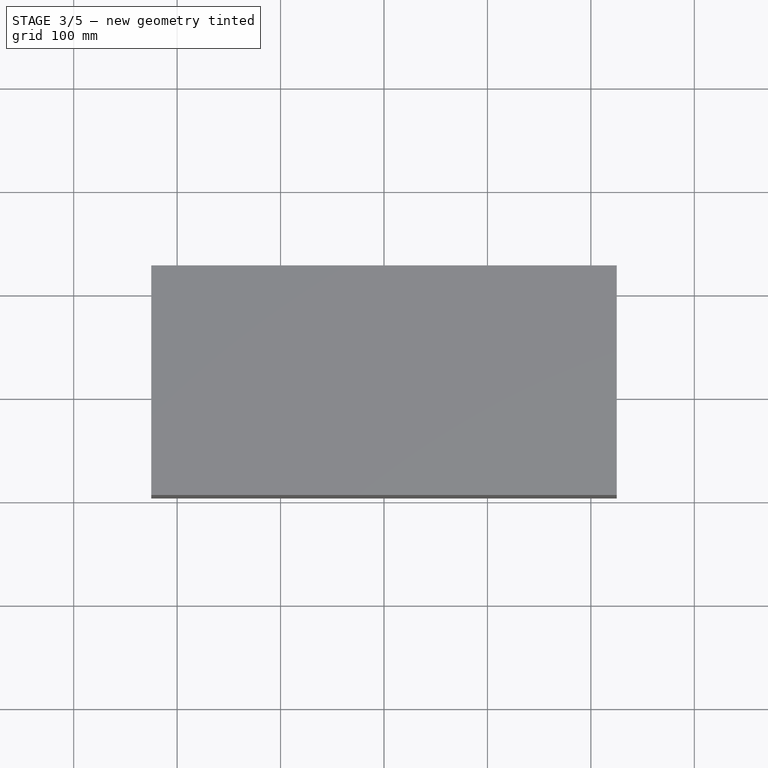
[diagram: stage 3 of 5 — top view after this stage's code; geometry added in this stage tinted green]
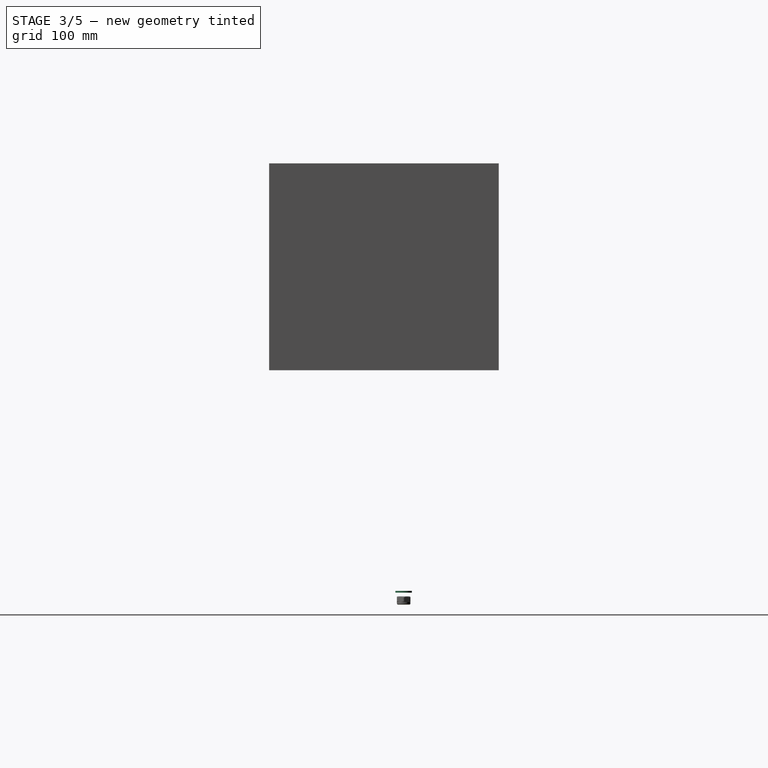
[diagram: stage 3 of 5 — right view after this stage's code; geometry added in this stage tinted green]
FEATURE [Part::FeaturePython] Washer  label="M8-Washer001"  # Fasteners workbench fastener (typed FeaturePython)
  InvalidShape = false
  Placement = pos=(-1.78743e-11,130,15) rot=(0,0,1;0rad)
  TreeRank = 116
  ValidateShape = true
  baseObject = -> Body004 [?Edge15]
  diameter = 8
  invert = false
  matchOuter = false
  offset = 0
  type = 4
FEATURE [Part::FeaturePython] Nut001  label="M8-Nut001"  # Fasteners workbench fastener (typed FeaturePython)
  InvalidShape = false
  Placement = pos=(-1.78743e-11,130,11.5) rot=(-1,0,0;3.14159rad)
  TreeRank = 118
  ValidateShape = true
  baseObject = -> Body004 [?Edge40]
  diameter = 6
  invert = false
  leftHanded = false
  matchOuter = false
  offset = 0
  thread = false
  type = 19
FEATURE [App::DocumentObjectGroup] Group006  label="VisserieInferieure"
  ClaimAllChildren = true
  ExportMode = 1
  Group = -> [Washer001,Nut,Washer,Screw,Nut001]
  TreeRank = 135
  _GroupVersion = 1
FEATURE [PartDesign::Chamfer] Chamfer001
  AddSubType = 0
  Angle = 45
  Base = -> Pocket002 [Edge8,Edge5]
  BaseFeature = -> Pocket002
  ChamferType = 0
  FlipDirection = false
  InvalidShape = false
  NewSolid = false
  Refine = true
  Size = 4
  Size2 = 1
  SupportTransform = false
  Suppress = false
  TreeRank = 119
  ValidateShape = true
FEATURE [PartDesign::Chamfer] Chamfer002
  AddSubType = 0
  Angle = 45
  Base = -> Chamfer001 [Face2,Edge50,Face5]
  BaseFeature = -> Chamfer001
  ChamferType = 0
  FlipDirection = false
  InvalidShape = false
  NewSolid = false
  Refine = true
  Size = 0.4
  Size2 = 1
  SupportTransform = false
  Suppress = false
  TreeRank = 120
  ValidateShape = true
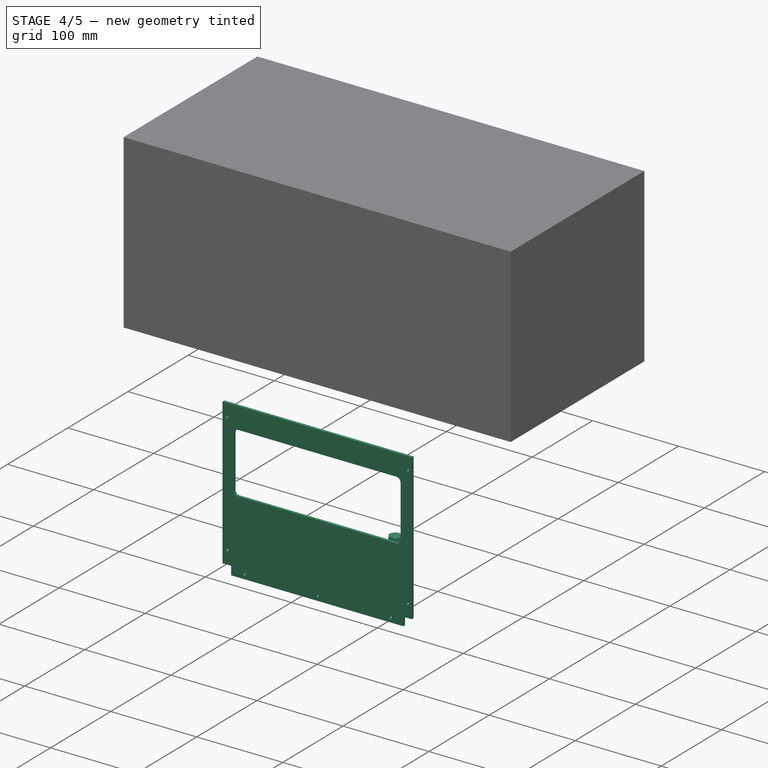
[diagram: stage 4 of 5 — iso view after this stage's code; geometry added in this stage tinted green]
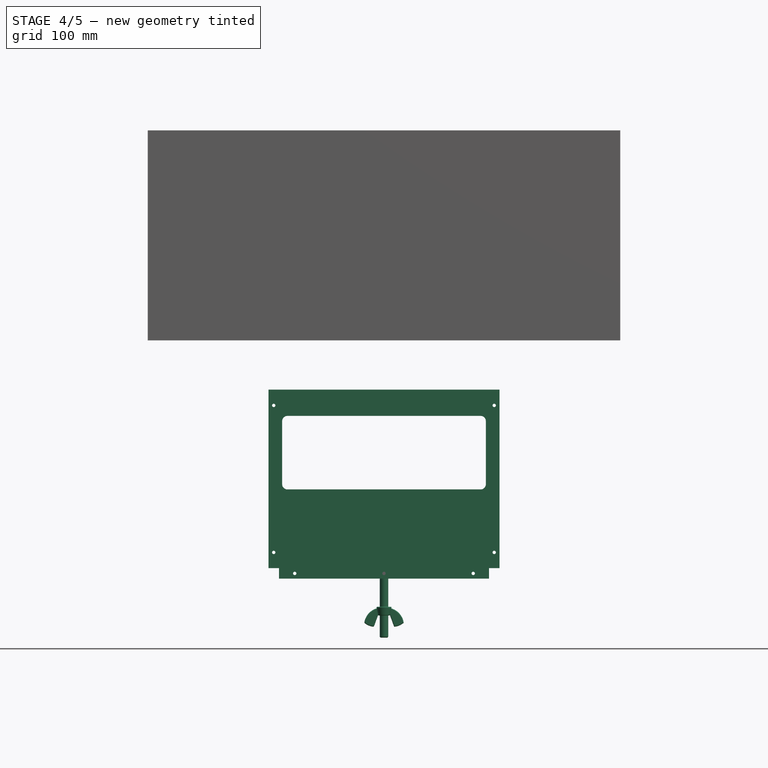
[diagram: stage 4 of 5 — front view after this stage's code; geometry added in this stage tinted green]
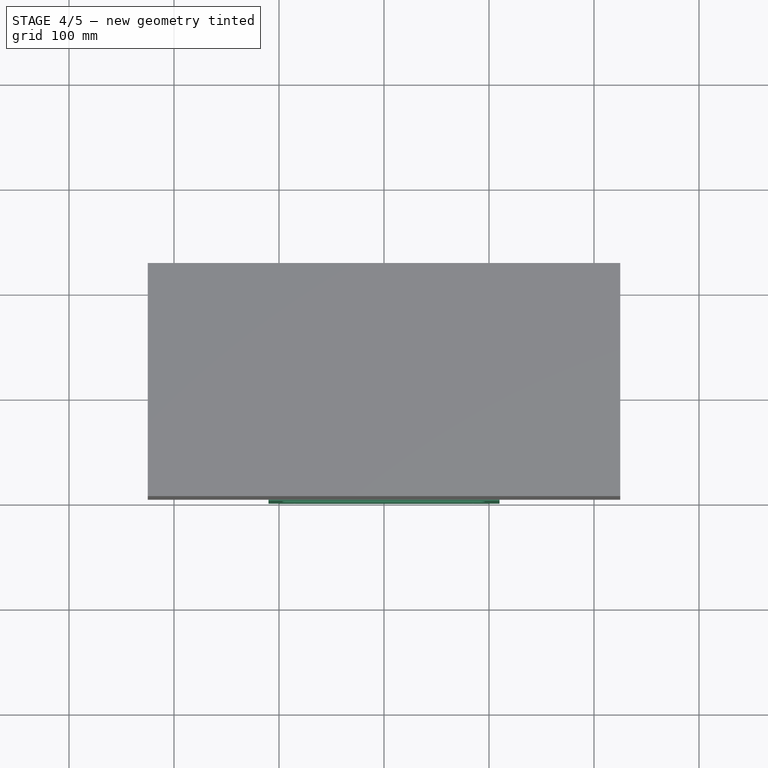
[diagram: stage 4 of 5 — top view after this stage's code; geometry added in this stage tinted green]
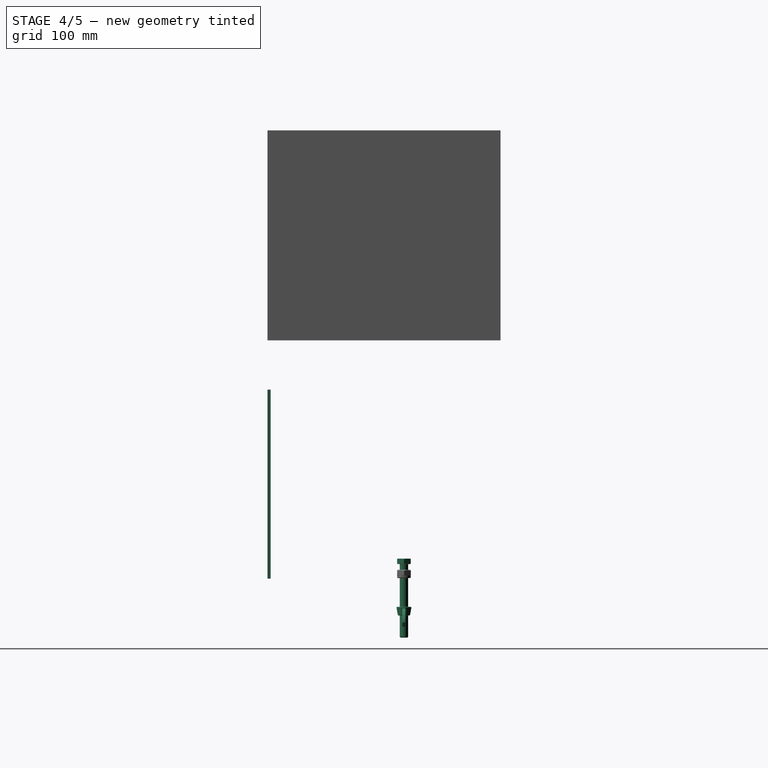
[diagram: stage 4 of 5 — right view after this stage's code; geometry added in this stage tinted green]
FEATURE [Part::SubShapeBinder] Import  label="Import(Pocket002)"
  BindCopyOnChange = 0
  BindMode = 0
  ClaimChildren = false
  Context = -> Body003 [Import.]
  EdgeTolerance = 1e-06
  FillStyle = 0
  Fuse = false
  InvalidShape = false
  MakeFace = false
  MergeEdges = true
  OffsetFill = false
  OffsetIntersection = false
  OffsetJoinType = 0
  OffsetOpenResult = false
  Outline = false
  PartialLoad = false
  Relative = true
  SplitEdges = false
  Support = -> [Body004[Pocket002.]]
  TightBound = false
  TreeRank = 110
  ValidateShape = true
  _Version = 8
FEATURE [Sketcher::SketchObject] Sketch009
  ArcFitTolerance = 1e-06
  AttachmentSupport = -> [XY_Plane003]
  ExternalBSplineMaxDegree = 5
  ExternalBSplineTolerance = 0.0001
  ExternalGeometry = -> [Import]
  FullyConstrained = true
  InternalTolerance = 1e-06
  InvalidShape = false
  MakeInternals = true
  MapMode = 5
  Support = -> [XY_Plane003]
  TreeRank = 109
  ValidateShape = true
  sketch-geometry (4):
    g0: Circle CenterX=0 CenterY=155 CenterZ=0 NormalX=0 NormalY=0 NormalZ=1 AngleXU=0 Radius=1.6
    g1: Circle CenterX=-10.3923 CenterY=136 CenterZ=0 NormalX=0 NormalY=0 NormalZ=1 AngleXU=0 Radius=1.6
    g2: Circle CenterX=10.3923 CenterY=136 CenterZ=0 NormalX=0 NormalY=0 NormalZ=1 AngleXU=0 Radius=1.6
    g3: Circle CenterX=1.1e-15 CenterY=118 CenterZ=0 NormalX=0 NormalY=0 NormalZ=1 AngleXU=0 Radius=1.6
  constraints (8):
    c: Coincident(g0,g-3)
    c: Coincident(g1,g-6)
    c: Coincident(g2,g-4)
    c: Coincident(g3,g-5)
    c: Equal(g3,g1)
    c: Equal(g3,g2)
    c: Equal(g3,g0)
    c: Diameter(g3) = 3.2
FEATURE [PartDesign::Pocket] Pocket003
  AddSubType = 1
  AutoTaperInnerAngle = true
  BaseFeature = -> Pocket001
  CheckUpToFaceLimits = true
  ClaimChildren = false
  Fit = 0
  FitJoin = 0
  InnerFit = 0
  InnerFitJoin = 0
  InvalidShape = false
  Length = 5
  Length2 = 100
  Linearize = true
  NewSolid = false
  Profile = -> Sketch009
  Refine = true
  Reversed = true
  Suppress = false
  TaperInnerAngle = 0
  TaperInnerAngleRev = 0
  TreeRank = 111
  Type = 1
  ValidateShape = true
  _ProfileBasedVersion = 1
  _Version = 1
FEATURE [PartDesign::Body] Body003  label="CarterInferieur"
  AutoGroupSolids = false
  ClaimAllChildren = false
  ExportMode = 0
  Group = -> [Sketch003,Pad003,Sketch004,Pocket,Mirrored,Chamfer,Sketch005,Pocket001,Sketch009,Import,Pocket003]
  InvalidShape = false
  Origin = -> Origin004
  SingleSolid = true
  Tip = -> Pocket003
  TreeRank = 79
  ValidateShape = true
  _ExportChildren = -> [Pad003,Pocket,Mirrored,Chamfer,Pocket001,Import,Pocket003]
  _GroupVersion = 1
FEATURE [Part::FeaturePython] Washer001  label="M8-Washer"  # Fasteners workbench fastener (typed FeaturePython)
  InvalidShape = false
  Placement = pos=(0,130,-22) rot=(-1,0,0;3.14159rad)
  TreeRank = 114
  ValidateShape = true
  baseObject = -> Body003 [Edge34]
  diameter = 8
  invert = true
  matchOuter = false
  offset = 22
  type = 3
FEATURE [Part::FeaturePython] Nut  label="M8-Nut"  # Fasteners workbench fastener (typed FeaturePython)
  InvalidShape = false
  Placement = pos=(0,130,-23.8) rot=(-1,0,0;3.14159rad)
  TreeRank = 115
  ValidateShape = true
  baseObject = -> Washer001 [Edge1]
  diameter = 4
  invert = false
  leftHanded = false
  matchOuter = false
  offset = 0
  thread = false
  type = 11
FEATURE [Part::FeaturePython] Screw  label="M8x70-Screw"  # Fasteners workbench fastener (typed FeaturePython)
  InvalidShape = false
  Placement = pos=(-1.78743e-11,130,16.8) rot=(0,0,1;0rad)
  TreeRank = 117
  ValidateShape = true
  baseObject = -> Washer [Edge1]
  diameter = 9
  invert = false
  leftHanded = false
  length = 11
  lengthCustom = 70
  matchOuter = false
  offset = 0
  thread = false
  type = 39
FEATURE [PartDesign::Body] Body004  label="BlocVisPapillon"
  AutoGroupSolids = false
  ClaimAllChildren = false
  ExportMode = 0
  Group = -> [Sketch006,Pad004,Sketch007,Pad005,Sketch008,Pocket002,Chamfer001,Chamfer002]
  InvalidShape = false
  Origin = -> Origin005
  Placement = pos=(0,0,3) rot=(0,0,1;0rad)
  SingleSolid = true
  Tip = -> Chamfer002
  TreeRank = 136
  ValidateShape = true
  _ExportChildren = -> [Pad004,Pad005,Pocket002,Chamfer001,Chamfer002]
  _GroupVersion = 1
FEATURE [Sketcher::SketchObject] Sketch010
  ArcFitTolerance = 1e-06
  AttachmentSupport = -> [XZ_Plane005]
  ExternalBSplineMaxDegree = 5
  ExternalBSplineTolerance = 0.0001
  FullyConstrained = true
  InternalTolerance = 1e-06
  InvalidShape = false
  MakeInternals = true
  MapMode = 5
  Placement = pos=(0,0,0) rot=(1,0,0;1.5708rad)
  Support = -> [XZ_Plane005]
  TreeRank = 131
  ValidateShape = true
  sketch-geometry (28):
    g0: LineSegment StartX=-100 StartY=3 StartZ=0 EndX=-100 EndY=13 EndZ=0
    g1: LineSegment StartX=-100 StartY=13 StartZ=0 EndX=-110 EndY=13 EndZ=0
    g2: LineSegment StartX=-110 StartY=13 StartZ=0 EndX=-110 EndY=183 EndZ=0
    g3: LineSegment StartX=-110 StartY=183 StartZ=0 EndX=110 EndY=183 EndZ=0
    g4: LineSegment StartX=110 StartY=183 StartZ=0 EndX=110 EndY=13 EndZ=0
    g5: LineSegment StartX=110 StartY=13 StartZ=0 EndX=100 EndY=13 EndZ=0
    g6: LineSegment StartX=100 StartY=13 StartZ=0 EndX=100 EndY=3 EndZ=0
    g7: LineSegment StartX=100 StartY=3 StartZ=0 EndX=-100 EndY=3 EndZ=0
    g8: ArcOfCircle CenterX=-92 CenterY=153 CenterZ=0 NormalX=0 NormalY=0 NormalZ=1 AngleXU=0 Radius=5 StartAngle=1.5708 EndAngle=3.14159
    g9: LineSegment StartX=-92 StartY=158 StartZ=0 EndX=92 EndY=158 EndZ=0
    g10: ArcOfCircle CenterX=92 CenterY=153 CenterZ=0 NormalX=0 NormalY=0 NormalZ=1 AngleXU=0 Radius=5 StartAngle=-9e-16 EndAngle=1.5708
    g11: LineSegment StartX=97 StartY=153 StartZ=0 EndX=97 EndY=93 EndZ=0
    g12: ArcOfCircle CenterX=92 CenterY=93 CenterZ=0 NormalX=0 NormalY=0 NormalZ=1 AngleXU=0 Radius=5 StartAngle=4.71239 EndAngle=6.28319
    g13: LineSegment StartX=92 StartY=88 StartZ=0 EndX=-92 EndY=88 EndZ=0
    g14: ArcOfCircle CenterX=-92 CenterY=93 CenterZ=0 NormalX=0 NormalY=0 NormalZ=1 AngleXU=0 Radius=5 StartAngle=3.14159 EndAngle=4.71239
    g15: LineSegment StartX=-97 StartY=93 StartZ=0 EndX=-97 EndY=153 EndZ=0
    g16: GeomPoint [constr] X=-97 Y=158 Z=0
    g17: GeomPoint [constr] X=97 Y=88 Z=0
    g18: LineSegment [constr] StartX=-100 StartY=8 StartZ=0 EndX=100 EndY=8 EndZ=0
    g19: LineSegment [constr] StartX=105 StartY=13 StartZ=0 EndX=105 EndY=183 EndZ=0
    g20: LineSegment [constr] StartX=-105 StartY=13 StartZ=0 EndX=-105 EndY=183 EndZ=0
    g21: Circle CenterX=-105 CenterY=168 CenterZ=0 NormalX=0 NormalY=0 NormalZ=1 AngleXU=0 Radius=1.6
    g22: Circle CenterX=-105 CenterY=28 CenterZ=0 NormalX=0 NormalY=0 NormalZ=1 AngleXU=0 Radius=1.6
    g23: Circle CenterX=-85 CenterY=8 CenterZ=0 NormalX=0 NormalY=0 NormalZ=1 AngleXU=0 Radius=1.6
    g24: Circle CenterX=85 CenterY=8 CenterZ=0 NormalX=0 NormalY=0 NormalZ=1 AngleXU=0 Radius=1.6
    g25: Circle CenterX=105 CenterY=28 CenterZ=0 NormalX=0 NormalY=0 NormalZ=1 AngleXU=0 Radius=1.6
    g26: Circle CenterX=105 CenterY=168 CenterZ=0 NormalX=0 NormalY=0 NormalZ=1 AngleXU=0 Radius=1.6
    g27: Circle CenterX=0 CenterY=8 CenterZ=0 NormalX=0 NormalY=0 NormalZ=1 AngleXU=0 Radius=1.6
  constraints (73):
    c: Vertical(g0)
    c: Coincident(g0,g1)
    c: Horizontal(g1)
    c: Coincident(g1,g2)
    c: Vertical(g2)
    c: Coincident(g2,g3)
    c: Horizontal(g3)
    c: Coincident(g3,g4)
    c: Vertical(g4)
    c: Coincident(g4,g5)
    c: Horizontal(g5)
    c: Coincident(g5,g6)
    c: Coincident(g6,g7)
    c: Coincident(g7,g0)
    c: Vertical(g6)
    c: Equal(g6,g5)
    c: Equal(g5,g0)
    c: Equal(g0,g1)
    c: DistanceX(g5,g5) = 10
    c: DistanceY(g6) = 3
    c: Symmetric(g6,g0,g-2)
    c: DistanceX(g1,g4) = 220
    c: Tangent(g8,g9) = 1.5708
    c: Tangent(g9,g10) = 1.5708
    c: Tangent(g10,g11) = 1.5708
    c: Tangent(g11,g12) = 1.5708
    c: Tangent(g12,g13) = 1.5708
    c: Tangent(g13,g14) = 1.5708
    c: Tangent(g14,g15) = 1.5708
    c: Tangent(g15,g8) = 1.5708
    c: Horizontal(g9)
    c: Horizontal(g13)
    c: Vertical(g11)
    c: Vertical(g15)
    c: Equal(g8,g10)
    c: Equal(g10,g12)
    c: PointOnObject(g16,g9)
    c: PointOnObject(g16,g15)
    c: PointOnObject(g17,g11)
    c: PointOnObject(g17,g13)
    c: DistanceY(g-1,g12) = 88
    c: Symmetric(g14,g12,g-2)
    c: DistanceY(g6,g3) = 180
    c: DistanceX(g0,g14) = 3
    c: DistanceY(g12,g9) = 70
    c: Radius(g8) = 5
    c: PointOnObject(g18,g0)
    c: Horizontal(g18)
    c: Symmetric(g6,g5,g18)
    c: PointOnObject(g19,g3)
    c: Vertical(g19)
    c: Symmetric(g5,g4,g19)
    c: PointOnObject(g20,g3)
    c: Vertical(g20)
    c: Symmetric(g1,g0,g20)
    c: PointOnObject(g21,g20)
    c: PointOnObject(g22,g20)
    c: PointOnObject(g23,g18)
    c: Equal(g26,g25)
    c: Equal(g26,g24)
    c: Equal(g26,g23)
    c: Equal(g26,g22)
    c: Equal(g26,g21)
    c: Diameter(g26) = 3.2
    c: Symmetric(g21,g26,g-2)
    c: Symmetric(g25,g22,g-2)
    c: Symmetric(g23,g24,g-2)
    c: DistanceY(g21,g20) = 15
    c: DistanceY(g20,g22) = 15
    c: DistanceX(g18,g23) = 15
    c: Equal(g27,g24)
    c: PointOnObject(g27,g18)
    c: PointOnObject(g27,g-2)
FEATURE [PartDesign::Pad] Pad006
  AddSubType = 0
  AlongSketchNormal = false
  AutoTaperInnerAngle = true
  CheckUpToFaceLimits = true
  ClaimChildren = false
  Direction = (0,-1,-2e-16)
  Fit = 0
  FitJoin = 0
  InnerFit = 0
  InnerFitJoin = 0
  InvalidShape = false
  Length = 3
  Length2 = 100
  Linearize = true
  NewSolid = false
  Profile = -> Sketch010
  Refine = true
  Reversed = true
  Suppress = false
  TaperInnerAngle = 0
  TaperInnerAngleRev = 0
  TreeRank = 132
  Type = 0
  ValidateShape = true
  _ProfileBasedVersion = 1
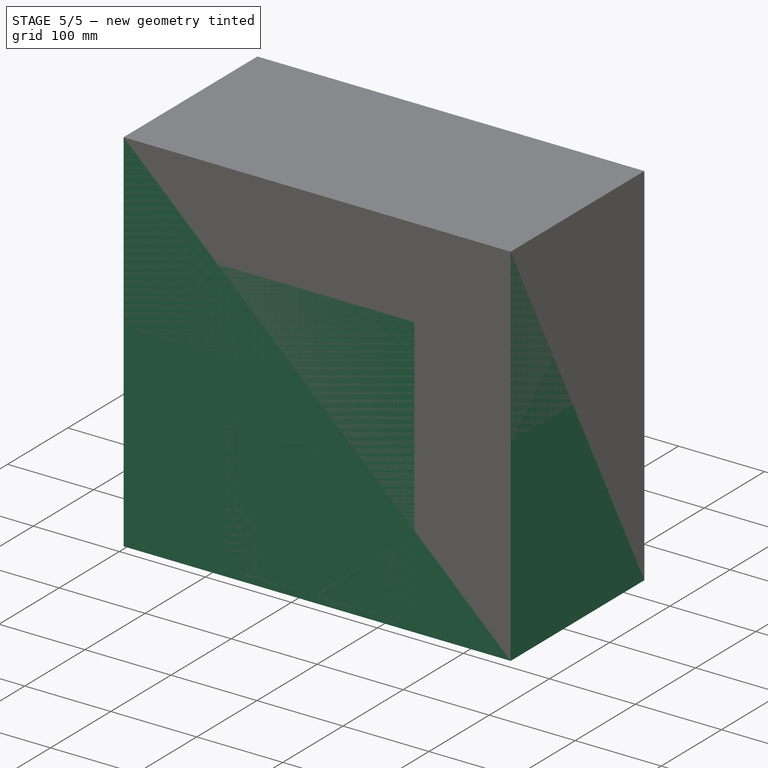
[diagram: stage 5 of 5 — iso view after this stage's code; geometry added in this stage tinted green]
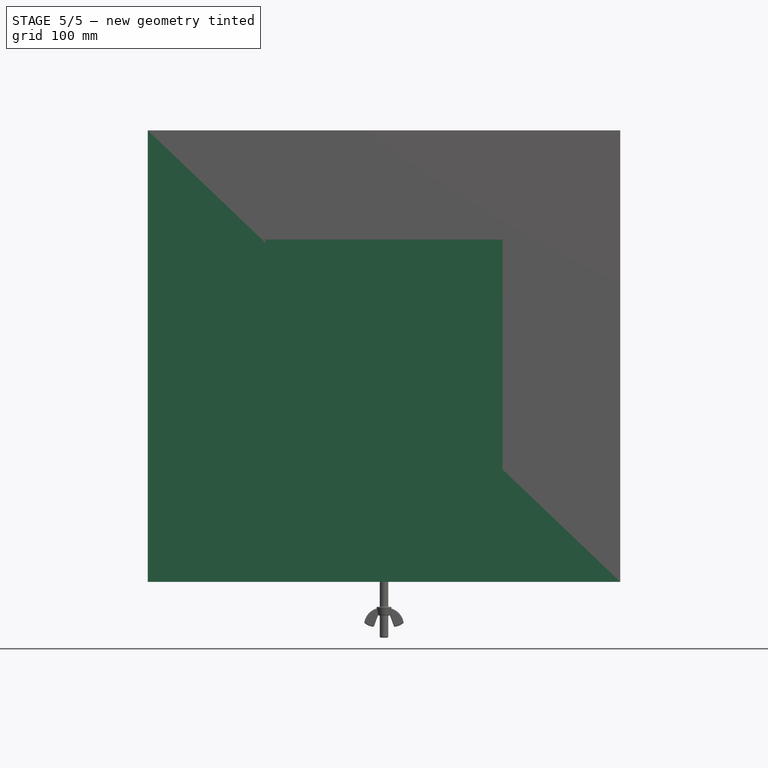
[diagram: stage 5 of 5 — front view after this stage's code; geometry added in this stage tinted green]
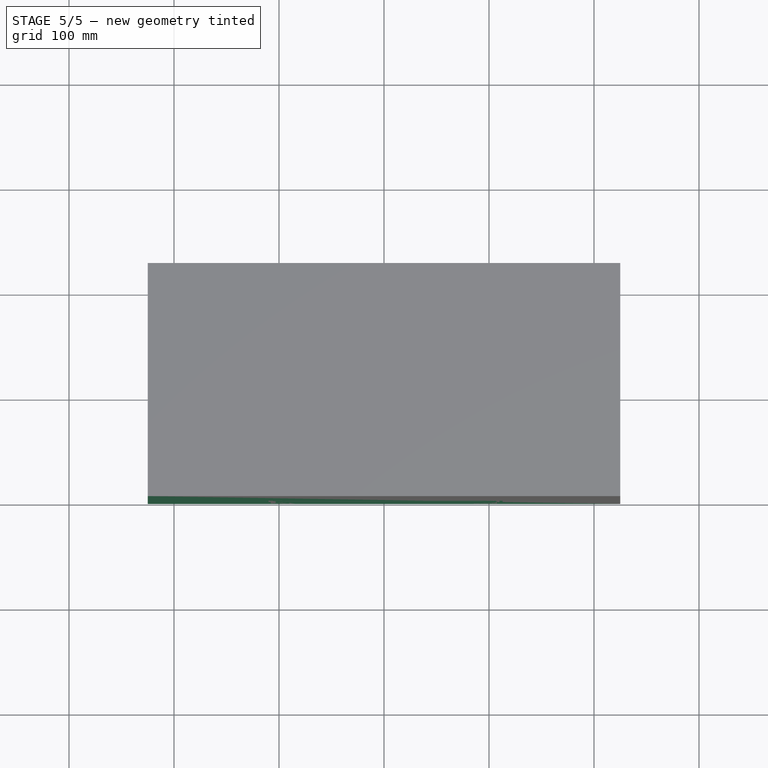
[diagram: stage 5 of 5 — top view after this stage's code; geometry added in this stage tinted green]
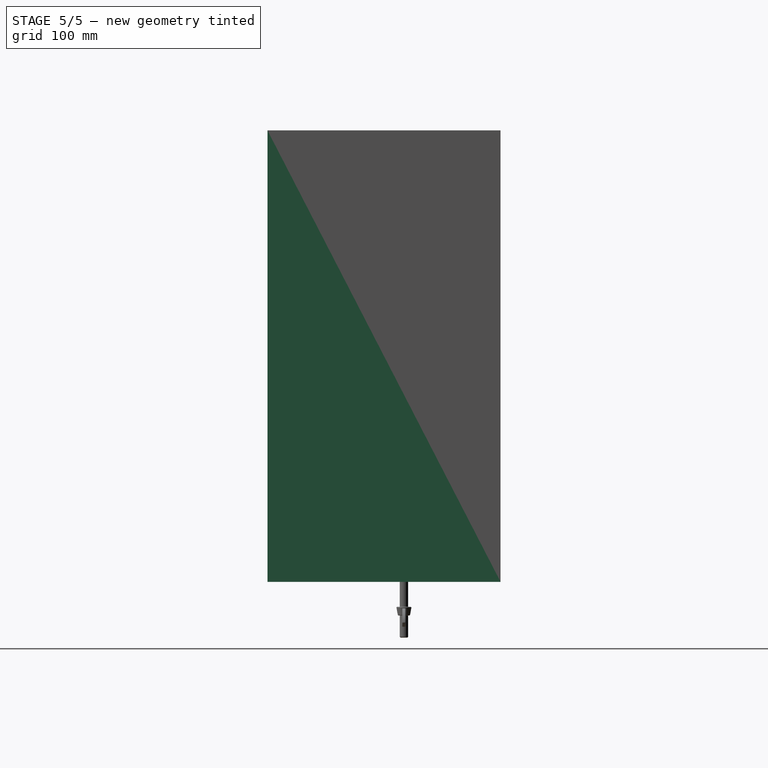
[diagram: stage 5 of 5 — right view after this stage's code; geometry added in this stage tinted green]
FEATURE [Sketcher::SketchObject] Sketch
  ArcFitTolerance = 1e-06
  AttachmentSupport = -> [XY_Plane]
  ExternalBSplineMaxDegree = 5
  ExternalBSplineTolerance = 0.0001
  FullyConstrained = true
  InternalTolerance = 1e-06
  InvalidShape = false
  MakeInternals = true
  MapMode = 5
  Support = -> [XY_Plane]
  TreeRank = 12
  ValidateShape = true
  sketch-geometry (4):
    g0: LineSegment StartX=-113 StartY=3.262e-13 StartZ=0 EndX=113 EndY=1.84043e-10 EndZ=0
    g1: LineSegment StartX=113 StartY=1.84043e-10 StartZ=0 EndX=113 EndY=176 EndZ=0
    g2: LineSegment StartX=113 StartY=176 StartZ=0 EndX=-113 EndY=176 EndZ=0
    g3: LineSegment StartX=-113 StartY=176 StartZ=0 EndX=-113 EndY=3.126e-13 EndZ=0
  constraints (11):
    c: Coincident(g0,g1)
    c: Coincident(g1,g2)
    c: Coincident(g2,g3)
    c: Coincident(g3,g0)
    c: Horizontal(g2)
    c: Vertical(g1)
    c: Vertical(g3)
    c: PointOnObject(g0,g-1)
    c: Symmetric(g0,g0,g-2)
    c: DistanceX(g0,g0) = 226
    c: DistanceY(g1,g1) = 176
FEATURE [PartDesign::Pad] Pad
  AddSubType = 0
  AlongSketchNormal = false
  AutoTaperInnerAngle = true
  CheckUpToFaceLimits = true
  ClaimChildren = false
  Direction = (0,0,1)
  Fit = 0
  FitJoin = 0
  InnerFit = 0
  InnerFitJoin = 0
  InvalidShape = false
  Length = 326
  Length2 = 100
  Linearize = true
  NewSolid = false
  Profile = -> Sketch
  Refine = true
  Suppress = false
  TaperInnerAngle = 0
  TaperInnerAngleRev = 0
  TreeRank = 13
  Type = 0
  ValidateShape = true
  _ProfileBasedVersion = 1
FEATURE [PartDesign::Body] Body  label="VolumeBasket"
  AutoGroupSolids = false
  ClaimAllChildren = false
  ExportMode = 0
  Group = -> [Sketch,Pad]
  InvalidShape = false
  Origin = -> Origin
  SingleSolid = true
  Tip = -> Pad
  TreeRank = 11
  ValidateShape = true
  _ExportChildren = -> [Pad]
  _GroupVersion = 1
FEATURE [App::Link] Link  label="Link(MB_300)"
  AutoLinkLabel = true
  AutoPlacement = true
  LinkedObject = -> <external mechanical-parts/generic-hardware.FCStd>#Body004
  SyncGroupVisibility = false
  TreeRank = 14
  _LinkVersion = 1
FEATURE [App::Link] Link001  label="Link001(MB_200)"
  AutoLinkLabel = true
  AutoPlacement = true
  LinkedObject = -> <external mechanical-parts/generic-hardware.FCStd>#Body096
  SyncGroupVisibility = false
  TreeRank = 15
  _LinkVersion = 1
FEATURE [App::Link] Link002  label="Link002(MB_150)"
  AutoLinkLabel = true
  AutoPlacement = true
  LinkedObject = -> <external mechanical-parts/generic-hardware.FCStd>#Body095
  SyncGroupVisibility = false
  TreeRank = 16
  _LinkVersion = 1
FEATURE [App::Link] Link003  label="Link003(Corner)"
  AutoLinkLabel = true
  AutoPlacement = true
  LinkedObject = -> <external mechanical-parts/generic-hardware.FCStd>#Body001
  SyncGroupVisibility = false
  TreeRank = 17
  _LinkVersion = 1
FEATURE [App::Link] Link004  label="Link004(*MB_300)"
  AutoLinkLabel = true
  AutoPlacement = true
  LinkPlacement = pos=(-105,168,13) rot=(1,0,0;1.5708rad)
  LinkedObject = -> Link
  Placement = pos=(-105,168,13) rot=(1,0,0;1.5708rad)
  SyncGroupVisibility = false
  TreeRank = 19
  _LinkVersion = 1
FEATURE [App::DocumentObjectGroup] Group  label="Parts"
  ClaimAllChildren = true
  ExportMode = 1
  Group = -> [Link,Link001,Link002,Link003]
  TreeRank = 10
  _GroupVersion = 1
FEATURE [Sketcher::SketchObject] Sketch001
  ArcFitTolerance = 1e-06
  AttachmentSupport = -> [XY_Plane001]
  ExternalBSplineMaxDegree = 5
  ExternalBSplineTolerance = 0.0001
  FullyConstrained = true
  InternalTolerance = 1e-06
  InvalidShape = false
  MakeInternals = true
  MapMode = 5
  Support = -> [XY_Plane001]
  TreeRank = 30
  ValidateShape = true
  sketch-geometry (4):
    g0: LineSegment StartX=-225 StartY=-3.837e-13 StartZ=0 EndX=225 EndY=-3.837e-13 EndZ=0
    g1: LineSegment StartX=225 StartY=-3.837e-13 StartZ=0 EndX=225 EndY=222 EndZ=0
    g2: LineSegment StartX=225 StartY=222 StartZ=0 EndX=-225 EndY=222 EndZ=0
    g3: LineSegment StartX=-225 StartY=222 StartZ=0 EndX=-225 EndY=-3.695e-13 EndZ=0
  constraints (11):
    c: Coincident(g0,g1)
    c: Coincident(g1,g2)
    c: Coincident(g2,g3)
    c: Coincident(g3,g0)
    c: Horizontal(g0)
    c: Horizontal(g2)
    c: Vertical(g1)
    c: Vertical(g3)
    c: Symmetric(g0,g0,g-1)
    c: DistanceY(g1,g1) = 222
    c: DistanceX(g0,g0) = 450
FEATURE [PartDesign::Pad] Pad001
  AddSubType = 0
  AlongSketchNormal = false
  AutoTaperInnerAngle = true
  CheckUpToFaceLimits = true
  ClaimChildren = false
  Direction = (0,0,1)
  Fit = 0
  FitJoin = 0
  InnerFit = 0
  InnerFitJoin = 0
  InvalidShape = false
  Length = 430
  Length2 = 100
  Linearize = true
  NewSolid = false
  Profile = -> Sketch001
  Refine = true
  Suppress = false
  TaperInnerAngle = 0
  TaperInnerAngleRev = 0
  TreeRank = 31
  Type = 0
  ValidateShape = true
  _ProfileBasedVersion = 1
FEATURE [PartDesign::Body] Body001  label="VolumeMax"
  AutoGroupSolids = false
  ClaimAllChildren = false
  ExportMode = 0
  Group = -> [Sketch001,Pad001]
  InvalidShape = false
  Origin = -> Origin001
  SingleSolid = true
  Tip = -> Pad001
  TreeRank = 29
  ValidateShape = true
  _ExportChildren = -> [Pad001]
  _GroupVersion = 1
FEATURE [Sketcher::SketchObject] Sketch002
  ArcFitTolerance = 1e-06
  AttachmentOffset = pos=(0,0,3) rot=(0,0,1;0rad)
  AttachmentSupport = -> [XY_Plane002]
  ExternalBSplineMaxDegree = 5
  ExternalBSplineTolerance = 0.0001
  FullyConstrained = true
  InternalTolerance = 1e-06
  InvalidShape = false
  MakeInternals = true
  MapMode = 5
  Placement = pos=(0,0,3) rot=(0,0,1;0rad)
  Support = -> [XY_Plane002]
  TreeRank = 42
  ValidateShape = true
  sketch-geometry (4):
    g0: LineSegment StartX=-110 StartY=173 StartZ=0 EndX=110 EndY=173 EndZ=0
    g1: LineSegment StartX=110 StartY=173 StartZ=0 EndX=110 EndY=3 EndZ=0
    g2: LineSegment StartX=110 StartY=3 StartZ=0 EndX=-110 EndY=3 EndZ=0
    g3: LineSegment StartX=-110 StartY=3 StartZ=0 EndX=-110 EndY=173 EndZ=0
  constraints (11):
    c: Coincident(g0,g1)
    c: Coincident(g1,g2)
    c: Coincident(g2,g3)
    c: Coincident(g3,g0)
    c: Horizontal(g0)
    c: Vertical(g1)
    c: Vertical(g3)
    c: Symmetric(g1,g2,g-2)
    c: DistanceY(g-1,g1) = 3
    c: DistanceX(g2,g2) = 220
    c: DistanceY(g1,g1) = 170
FEATURE [PartDesign::Pad] Pad002
  AddSubType = 0
  AlongSketchNormal = false
  AutoTaperInnerAngle = true
  CheckUpToFaceLimits = true
  ClaimChildren = false
  Direction = (0,0,1)
  Fit = 0
  FitJoin = 0
  InnerFit = 0
  InnerFitJoin = 0
  InvalidShape = false
  Length = 320
  Length2 = 100
  Linearize = true
  NewSolid = false
  Profile = -> Sketch002
  Refine = true
  Suppress = false
  TaperInnerAngle = 0
  TaperInnerAngleRev = 0
  TreeRank = 43
  Type = 0
  ValidateShape = true
  _ProfileBasedVersion = 1
FEATURE [PartDesign::Chamfer] Chamfer003
  AddSubType = 0
  Angle = 45
  Base = -> Pad006 [Edge14,Edge20,Edge1,Edge5,Edge8,Edge11]
  BaseFeature = -> Pad006
  ChamferType = 0
  FlipDirection = false
  InvalidShape = false
  NewSolid = false
  Refine = true
  Size = 1.5
  Size2 = 1
  SupportTransform = false
  Suppress = false
  TreeRank = 133
  ValidateShape = true
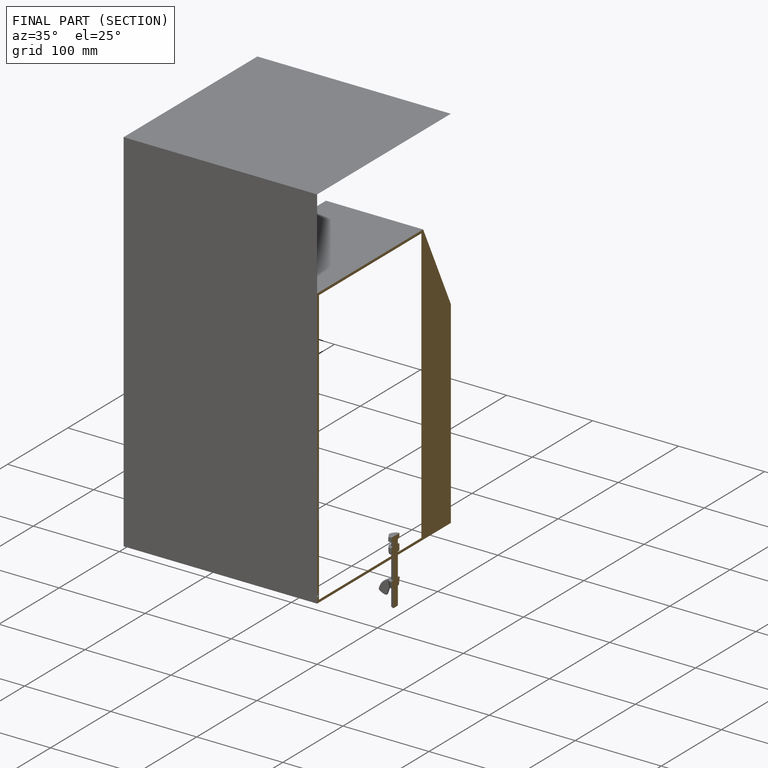
[diagram: finished part — half-section view (interior)]
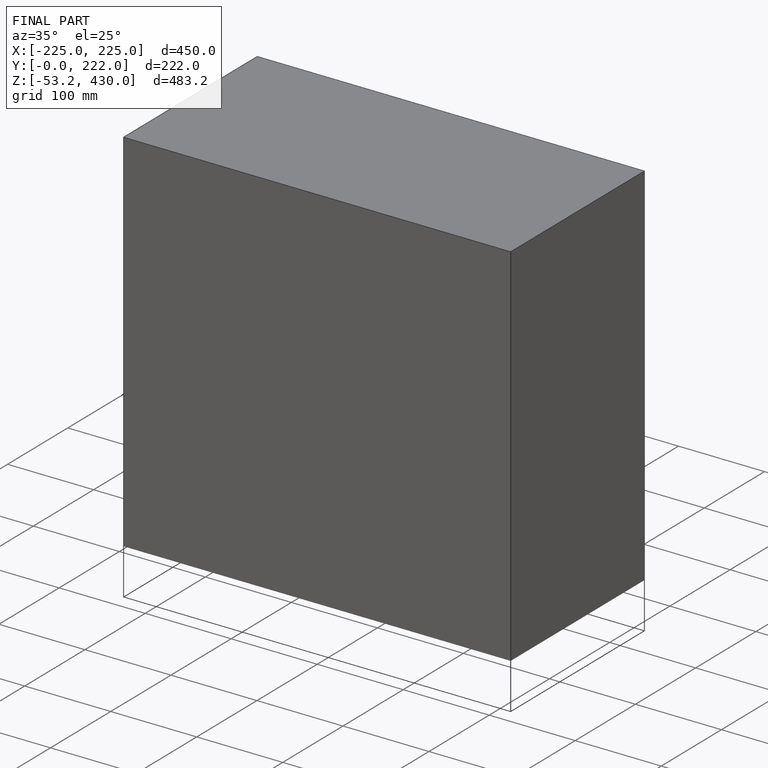
[diagram: finished part — iso view with bounding-box wireframe]
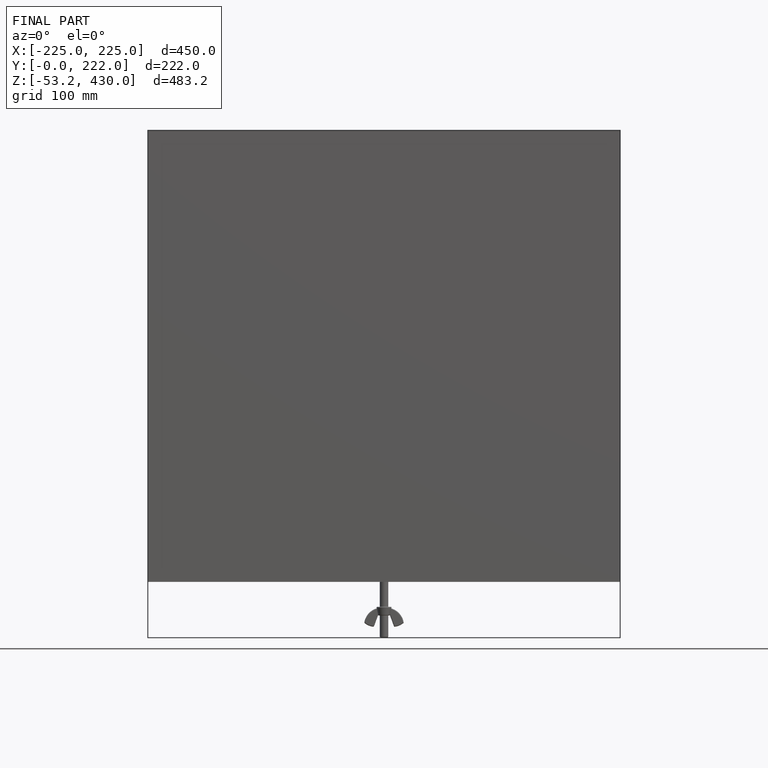
[diagram: finished part — front view with bounding-box wireframe]
